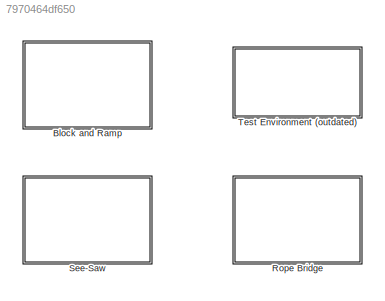
MODEL slx_7970464df650
KIND library
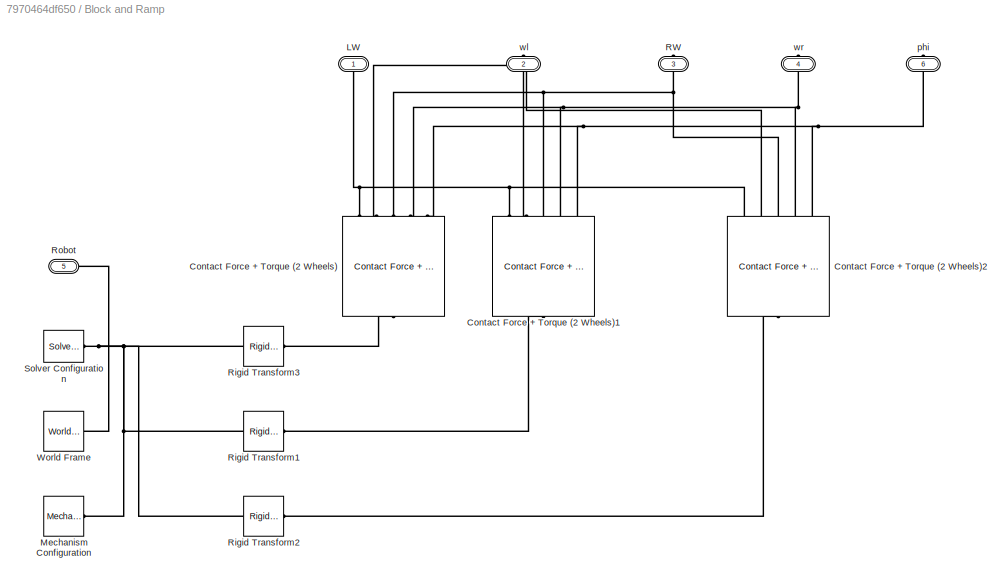
BLOCK [SubSystem] Block and Ramp
  Ports = [0, 0, 0, 0, 0, 1, 5]
  RequestExecContextInheritance = off
BLOCK [Reference] Block and Ramp/Contact Force + Torque (2 Wheels)  REF=contactlibV2/Contact Force + Torque
(2 Wheels)
  Ports = [0, 0, 0, 0, 0, 1, 5]
  SourceBlock = contactlibV2/Contact Force + Torque\n(2 Wheels)
  b = b
  b2 = b2
  blockColor = [0.2 0.2 1]
  k = k
  mBlock = 5
  rWheel = wheel.r
  xBlock = 3
  yBlock = 3
  zBlock = 0.01
BLOCK [Reference] Block and Ramp/Contact Force + Torque (2 Wheels)1  REF=contactlibV2/Contact Force + Torque
(2 Wheels)
  Ports = [0, 0, 0, 0, 0, 1, 5]
  SourceBlock = contactlibV2/Contact Force + Torque\n(2 Wheels)
  b = b
  b2 = b2
  blockColor = [0.2 0.6 0.2]
  k = k
  mBlock = 5
  rWheel = wheel.r
  xBlock = 1
  yBlock = 3
  zBlock = 0.025
BLOCK [Reference] Block and Ramp/Contact Force + Torque (2 Wheels)2  REF=contactlibV2/Contact Force + Torque
(2 Wheels)
  Ports = [0, 0, 0, 0, 0, 1, 5]
  SourceBlock = contactlibV2/Contact Force + Torque\n(2 Wheels)
  b = b
  b2 = b2
  blockColor = [0.6 0.2 0.2]
  k = k
  mBlock = 5
  rWheel = wheel.r
  xBlock = 1
  yBlock = 3
  zBlock = 0.025
BLOCK [PMIOPort] Block and Ramp/LW
  Port = 1
  Side = Right
BLOCK [Reference] Block and Ramp/Mechanism Configuration  REF=sm_lib/Utilities/Mechanism
Configuration
  BlockFunction = simmechanics.library.utilities.mechanism_configuration
  ClassName = MechanismConfiguration
  GravityUnits = m/s^2
  GravityVector = [0 0 -9.80665]
  LinearizationDelta = 0.001
  LogSimulationData = off
  Ports = [0, 0, 0, 0, 0, 0, 1]
  SourceBlock = sm_lib/Utilities/Mechanism\nConfiguration
  SourceType = Mechanism\nConfiguration
  UniformGravity = Constant
BLOCK [PMIOPort] Block and Ramp/RW
  Port = 3
  Side = Right
BLOCK [Reference] Block and Ramp/Rigid Transform1  REF=sm_lib/Frames and
Transforms/Rigid
Transform
  BaseAlignAxisA = +Y
  BaseAlignAxisB = +Z
  BlockFunction = simmechanics.library.frames_transforms.rigid_transform
  ClassName = RigidTransform
  FollAlignAxisA = +X
  FollAlignAxisB = +Y
  LogSimulationData = off
  Ports = [0, 0, 0, 0, 0, 1, 1]
  RotationAngle = 0
  RotationAngleUnits = deg
  RotationArbitraryAxis = [0 0 1]
  RotationMatrix = [1 0 0; 0 1 0; 0 0 1]
  RotationMethod = StandardAxis
  RotationStandardAxis = +Z
  SourceBlock = sm_lib/Frames and\nTransforms/Rigid\nTransform
  SourceType = Rigid\nTransform
  TranslationCartesianOffset = [1 0 0.0825-0.12]
  TranslationLengthUnit = m
  TranslationMethod = Cartesian
  TranslationROffset = 0
  TranslationROffsetUnits = m
  TranslationStandardAxis = +Z
  TranslationStandardOffset = 0
  TranslationThetaOffset = 0
  TranslationThetaOffsetUnits = deg
  TranslationZOffset = 0
  TranslationZOffsetUnits = m
BLOCK [Reference] Block and Ramp/Rigid Transform2  REF=sm_lib/Frames and
Transforms/Rigid
Transform
  BaseAlignAxisA = +Y
  BaseAlignAxisB = +Z
  BlockFunction = simmechanics.library.frames_transforms.rigid_transform
  ClassName = RigidTransform
  FollAlignAxisA = +X
  FollAlignAxisB = +Y
  LogSimulationData = off
  Ports = [0, 0, 0, 0, 0, 1, 1]
  RotationAngle = 15
  RotationAngleUnits = deg
  RotationArbitraryAxis = [0 0 1]
  RotationMatrix = [1 0 0; 0 1 0; 0 0 1]
  RotationMethod = StandardAxis
  RotationStandardAxis = +Y
  SourceBlock = sm_lib/Frames and\nTransforms/Rigid\nTransform
  SourceType = Rigid\nTransform
  TranslationCartesianOffset = [-1 0 0.084]
  TranslationLengthUnit = m
  TranslationMethod = Cartesian
  TranslationROffset = 0
  TranslationROffsetUnits = m
  TranslationStandardAxis = +Z
  TranslationStandardOffset = 0
  TranslationThetaOffset = 0
  TranslationThetaOffsetUnits = deg
  TranslationZOffset = 0
  TranslationZOffsetUnits = m
BLOCK [Reference] Block and Ramp/Rigid Transform3  REF=sm_lib/Frames and
Transforms/Rigid
Transform
  BaseAlignAxisA = +Y
  BaseAlignAxisB = +Z
  BlockFunction = simmechanics.library.frames_transforms.rigid_transform
  ClassName = RigidTransform
  FollAlignAxisA = +X
  FollAlignAxisB = +Y
  LogSimulationData = off
  Ports = [0, 0, 0, 0, 0, 1, 1]
  RotationAngle = 0
  RotationAngleUnits = deg
  RotationArbitraryAxis = [0 0 1]
  RotationMatrix = [1 0 0; 0 1 0; 0 0 1]
  RotationMethod = StandardAxis
  RotationStandardAxis = +Z
  SourceBlock = sm_lib/Frames and\nTransforms/Rigid\nTransform
  SourceType = Rigid\nTransform
  TranslationCartesianOffset = [0 0 -(wheel.r+0.01)]
  TranslationLengthUnit = m
  TranslationMethod = Cartesian
  TranslationROffset = 0
  TranslationROffsetUnits = m
  TranslationStandardAxis = +Z
  TranslationStandardOffset = 0
  TranslationThetaOffset = 0
  TranslationThetaOffsetUnits = deg
  TranslationZOffset = 0
  TranslationZOffsetUnits = m
BLOCK [PMIOPort] Block and Ramp/Robot
  Port = 5
  Side = Left
BLOCK [Reference] Block and Ramp/Solver Configuration  REF=nesl_utility/Solver
Configuration
  AbsTol = 1e-06
  Accelerate = off
  AutomaticFiltering = on
  DelaysMemoryBudget = 1024
  DoDC = off
  DoFixedCost = off
  EnableSwitchedLinearOptims = on
  FilteringTimeConstant = 0.001
  FrequencyDomain = off
  Harmonics = []
  LeftPortType = input
  LinearAlgebra = Sparse
  LocalSolverChoice = NE_BACKWARD_EULER_ADVANCER
  LocalSolverSampleTime = 0.001
  MaxModeIter = 2
  MaxNonlinIter = 3
  MinStep = 1e-09
  PhysicalDomain = network_engine_domain
  Ports = [0, 0, 0, 0, 0, 0, 1]
  Profile = off
  RelTol = 0.001
  ResidualTolerance = 1e-09
  RightPortType = generic
  SimulateNoise = off
  SourceBlock = nesl_utility/Solver\nConfiguration
  SourceType = Solver\nConfiguration
  SubClassName = solver
  ToWorkspace = off
  Tones = []
  UseCCode = off
  UseLocalSampling = off
  UseLocalSolver = off
BLOCK [Reference] Block and Ramp/World Frame  REF=sm_lib/Frames and
Transforms/World Frame
  BlockFunction = simmechanics.library.frames_transforms.world_frame
  ClassName = WorldFrame
  LogSimulationData = off
  Ports = [0, 0, 0, 0, 0, 0, 1]
  SourceBlock = sm_lib/Frames and\nTransforms/World Frame
  SourceType = World Frame
BLOCK [PMIOPort] Block and Ramp/phi
  Port = 6
  Side = Right
BLOCK [PMIOPort] Block and Ramp/wl
  Port = 2
  Side = Right
BLOCK [PMIOPort] Block and Ramp/wr
  Port = 4
  Side = Right
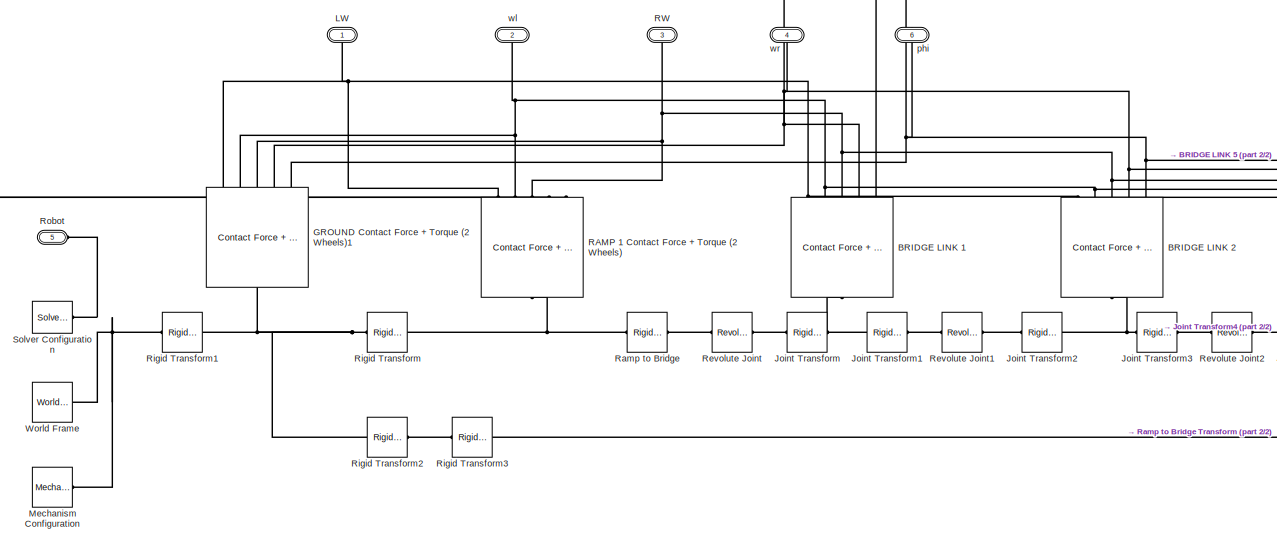
[diagram: Rope Bridge - part 1/2, left side, full height]
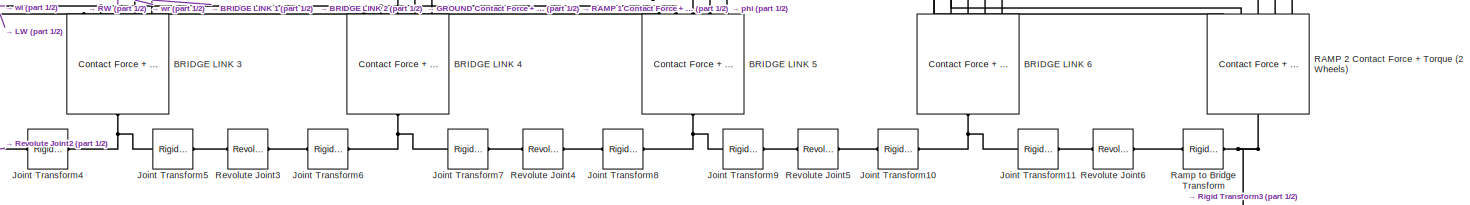
[diagram: Rope Bridge - part 2/2, middle right region]
BLOCK [SubSystem] Rope Bridge
  Ports = [0, 0, 0, 0, 0, 1, 5]
  RequestExecContextInheritance = off
  VariantControl = Variant2
BLOCK [Reference] Rope Bridge/ BRIDGE LINK 1  REF=contactlibV2/Contact Force + Torque
(2 Wheels, Moving Block)
  Ports = [0, 0, 0, 0, 0, 1, 5]
  SourceBlock = contactlibV2/Contact Force + Torque\n(2 Wheels, Moving Block)
  b = b
  b2 = b2
  blockColor = [1 0 0]
  k = k
  mBlock = 0.2
  rWheel = wheel.r
  xBlock = 2.5*(0.0254)
  yBlock = 12*(0.0254)
  zBlock = 0.75*(0.0254)
BLOCK [Reference] Rope Bridge/ BRIDGE LINK 2  REF=contactlibV2/Contact Force + Torque
(2 Wheels, Moving Block)
  Ports = [0, 0, 0, 0, 0, 1, 5]
  SourceBlock = contactlibV2/Contact Force + Torque\n(2 Wheels, Moving Block)
  b = b
  b2 = b2
  blockColor = [0 1 0]
  k = k
  mBlock = 0.2
  rWheel = wheel.r
  xBlock = 2.5*(0.0254)
  yBlock = 12*(0.0254)
  zBlock = 0.75*(0.0254)
BLOCK [Reference] Rope Bridge/ BRIDGE LINK 3  REF=contactlibV2/Contact Force + Torque
(2 Wheels, Moving Block)
  Ports = [0, 0, 0, 0, 0, 1, 5]
  SourceBlock = contactlibV2/Contact Force + Torque\n(2 Wheels, Moving Block)
  b = b
  b2 = b2
  blockColor = [1 0 0]
  k = k
  mBlock = 0.2
  rWheel = wheel.r
  xBlock = 2.5*(0.0254)
  yBlock = 12*(0.0254)
  zBlock = 0.75*(0.0254)
BLOCK [Reference] Rope Bridge/ BRIDGE LINK 4  REF=contactlibV2/Contact Force + Torque
(2 Wheels, Moving Block)
  Ports = [0, 0, 0, 0, 0, 1, 5]
  SourceBlock = contactlibV2/Contact Force + Torque\n(2 Wheels, Moving Block)
  b = b
  b2 = b2
  blockColor = [0 1 0]
  k = k
  mBlock = 0.2
  rWheel = wheel.r
  xBlock = 2.5*(0.0254)
  yBlock = 12*(0.0254)
  zBlock = 0.75*(0.0254)
BLOCK [Reference] Rope Bridge/ BRIDGE LINK 5  REF=contactlibV2/Contact Force + Torque
(2 Wheels, Moving Block)
  Ports = [0, 0, 0, 0, 0, 1, 5]
  SourceBlock = contactlibV2/Contact Force + Torque\n(2 Wheels, Moving Block)
  b = b
  b2 = b2
  blockColor = [1 0 0]
  k = k
  mBlock = 0.2
  rWheel = wheel.r
  xBlock = 2.5*(0.0254)
  yBlock = 12*(0.0254)
  zBlock = 0.75*(0.0254)
BLOCK [Reference] Rope Bridge/ BRIDGE LINK 6  REF=contactlibV2/Contact Force + Torque
(2 Wheels, Moving Block)
  Ports = [0, 0, 0, 0, 0, 1, 5]
  SourceBlock = contactlibV2/Contact Force + Torque\n(2 Wheels, Moving Block)
  b = b
  b2 = b2
  blockColor = [0 1 0]
  k = k
  mBlock = 0.2
  rWheel = wheel.r
  xBlock = 2.5*(0.0254)
  yBlock = 12*(0.0254)
  zBlock = 0.75*(0.0254)
BLOCK [Reference] Rope Bridge/GROUND Contact Force + Torque (2 Wheels)1  REF=contactlibV2/Contact Force + Torque
(2 Wheels)
  Ports = [0, 0, 0, 0, 0, 1, 5]
  SourceBlock = contactlibV2/Contact Force + Torque\n(2 Wheels)
  b = b
  b2 = b2
  blockColor = [0.2 0.2 0.6]
  k = k
  mBlock = 5
  rWheel = wheel.r
  xBlock = 24*(0.0254)
  yBlock = 12*(0.0254)
  zBlock = 0.5*(0.0254)
BLOCK [Reference] Rope Bridge/Joint Transform  REF=sm_lib/Frames and
Transforms/Rigid
Transform
  BaseAlignAxisA = +Y
  BaseAlignAxisB = +Z
  BlockFunction = simmechanics.library.frames_transforms.rigid_transform
  ClassName = RigidTransform
  FollAlignAxisA = +X
  FollAlignAxisB = +Y
  LogSimulationData = off
  Ports = [0, 0, 0, 0, 0, 1, 1]
  RotationAngle = 90
  RotationAngleUnits = deg
  RotationArbitraryAxis = [0 0 1]
  RotationMatrix = [1 0 0; 0 1 0; 0 0 1]
  RotationMethod = StandardAxis
  RotationStandardAxis = -X
  SourceBlock = sm_lib/Frames and\nTransforms/Rigid\nTransform
  SourceType = Rigid\nTransform
  TranslationCartesianOffset = [1.25 0 -0.2]
  TranslationLengthUnit = in
  TranslationMethod = StandardAxis
  TranslationROffset = 0
  TranslationROffsetUnits = m
  TranslationStandardAxis = +X
  TranslationStandardOffset = 1.25
  TranslationThetaOffset = 0
  TranslationThetaOffsetUnits = deg
  TranslationZOffset = 0
  TranslationZOffsetUnits = m
BLOCK [Reference] Rope Bridge/Joint Transform1  REF=sm_lib/Frames and
Transforms/Rigid
Transform
  BaseAlignAxisA = +Y
  BaseAlignAxisB = +Z
  BlockFunction = simmechanics.library.frames_transforms.rigid_transform
  ClassName = RigidTransform
  FollAlignAxisA = +X
  FollAlignAxisB = +Y
  LogSimulationData = off
  Ports = [0, 0, 0, 0, 0, 1, 1]
  RotationAngle = 90
  RotationAngleUnits = deg
  RotationArbitraryAxis = [0 0 1]
  RotationMatrix = [1 0 0; 0 1 0; 0 0 1]
  RotationMethod = StandardAxis
  RotationStandardAxis = +X
  SourceBlock = sm_lib/Frames and\nTransforms/Rigid\nTransform
  SourceType = Rigid\nTransform
  TranslationCartesianOffset = [(11*cos(asin(4.75/22))) 0 4.75/2]
  TranslationLengthUnit = in
  TranslationMethod = StandardAxis
  TranslationROffset = 0
  TranslationROffsetUnits = m
  TranslationStandardAxis = +X
  TranslationStandardOffset = 1.25
  TranslationThetaOffset = 0
  TranslationThetaOffsetUnits = deg
  TranslationZOffset = 0
  TranslationZOffsetUnits = m
BLOCK [Reference] Rope Bridge/Joint Transform10  REF=sm_lib/Frames and
Transforms/Rigid
Transform
  BaseAlignAxisA = +Y
  BaseAlignAxisB = +Z
  BlockFunction = simmechanics.library.frames_transforms.rigid_transform
  ClassName = RigidTransform
  FollAlignAxisA = +X
  FollAlignAxisB = +Y
  LogSimulationData = off
  Ports = [0, 0, 0, 0, 0, 1, 1]
  RotationAngle = 90
  RotationAngleUnits = deg
  RotationArbitraryAxis = [0 0 1]
  RotationMatrix = [1 0 0; 0 1 0; 0 0 1]
  RotationMethod = StandardAxis
  RotationStandardAxis = -X
  SourceBlock = sm_lib/Frames and\nTransforms/Rigid\nTransform
  SourceType = Rigid\nTransform
  TranslationCartesianOffset = [(11*cos(asin(4.75/22))) 0 4.75/2]
  TranslationLengthUnit = in
  TranslationMethod = StandardAxis
  TranslationROffset = 0
  TranslationROffsetUnits = m
  TranslationStandardAxis = +X
  TranslationStandardOffset = 1.25
  TranslationThetaOffset = 0
  TranslationThetaOffsetUnits = deg
  TranslationZOffset = 0
  TranslationZOffsetUnits = m
BLOCK [Reference] Rope Bridge/Joint Transform11  REF=sm_lib/Frames and
Transforms/Rigid
Transform
  BaseAlignAxisA = +Y
  BaseAlignAxisB = +Z
  BlockFunction = simmechanics.library.frames_transforms.rigid_transform
  ClassName = RigidTransform
  FollAlignAxisA = +X
  FollAlignAxisB = +Y
  LogSimulationData = off
  Ports = [0, 0, 0, 0, 0, 1, 1]
  RotationAngle = 90
  RotationAngleUnits = deg
  RotationArbitraryAxis = [0 0 1]
  RotationMatrix = [1 0 0; 0 1 0; 0 0 1]
  RotationMethod = StandardAxis
  RotationStandardAxis = +X
  SourceBlock = sm_lib/Frames and\nTransforms/Rigid\nTransform
  SourceType = Rigid\nTransform
  TranslationCartesianOffset = [1.25 0 0]
  TranslationLengthUnit = in
  TranslationMethod = Cartesian
  TranslationROffset = 0
  TranslationROffsetUnits = m
  TranslationStandardAxis = +X
  TranslationStandardOffset = 1.25
  TranslationThetaOffset = 0
  TranslationThetaOffsetUnits = deg
  TranslationZOffset = 0
  TranslationZOffsetUnits = m
BLOCK [Reference] Rope Bridge/Joint Transform2  REF=sm_lib/Frames and
Transforms/Rigid
Transform
  BaseAlignAxisA = +Y
  BaseAlignAxisB = +Z
  BlockFunction = simmechanics.library.frames_transforms.rigid_transform
  ClassName = RigidTransform
  FollAlignAxisA = +X
  FollAlignAxisB = +Y
  LogSimulationData = off
  Ports = [0, 0, 0, 0, 0, 1, 1]
  RotationAngle = 90
  RotationAngleUnits = deg
  RotationArbitraryAxis = [0 0 1]
  RotationMatrix = [1 0 0; 0 1 0; 0 0 1]
  RotationMethod = StandardAxis
  RotationStandardAxis = -X
  SourceBlock = sm_lib/Frames and\nTransforms/Rigid\nTransform
  SourceType = Rigid\nTransform
  TranslationCartesianOffset = [(11*cos(asin(4.75/22))) 0 4.75/2]
  TranslationLengthUnit = in
  TranslationMethod = StandardAxis
  TranslationROffset = 0
  TranslationROffsetUnits = m
  TranslationStandardAxis = +X
  TranslationStandardOffset = 1.25
  TranslationThetaOffset = 0
  TranslationThetaOffsetUnits = deg
  TranslationZOffset = 0
  TranslationZOffsetUnits = m
BLOCK [Reference] Rope Bridge/Joint Transform3  REF=sm_lib/Frames and
Transforms/Rigid
Transform
  BaseAlignAxisA = +Y
  BaseAlignAxisB = +Z
  BlockFunction = simmechanics.library.frames_transforms.rigid_transform
  ClassName = RigidTransform
  FollAlignAxisA = +X
  FollAlignAxisB = +Y
  LogSimulationData = off
  Ports = [0, 0, 0, 0, 0, 1, 1]
  RotationAngle = 90
  RotationAngleUnits = deg
  RotationArbitraryAxis = [0 0 1]
  RotationMatrix = [1 0 0; 0 1 0; 0 0 1]
  RotationMethod = StandardAxis
  RotationStandardAxis = +X
  SourceBlock = sm_lib/Frames and\nTransforms/Rigid\nTransform
  SourceType = Rigid\nTransform
  TranslationCartesianOffset = [(11*cos(asin(4.75/22))) 0 4.75/2]
  TranslationLengthUnit = in
  TranslationMethod = StandardAxis
  TranslationROffset = 0
  TranslationROffsetUnits = m
  TranslationStandardAxis = +X
  TranslationStandardOffset = 1.25
  TranslationThetaOffset = 0
  TranslationThetaOffsetUnits = deg
  TranslationZOffset = 0
  TranslationZOffsetUnits = m
BLOCK [Reference] Rope Bridge/Joint Transform4  REF=sm_lib/Frames and
Transforms/Rigid
Transform
  BaseAlignAxisA = +Y
  BaseAlignAxisB = +Z
  BlockFunction = simmechanics.library.frames_transforms.rigid_transform
  ClassName = RigidTransform
  FollAlignAxisA = +X
  FollAlignAxisB = +Y
  LogSimulationData = off
  Ports = [0, 0, 0, 0, 0, 1, 1]
  RotationAngle = 90
  RotationAngleUnits = deg
  RotationArbitraryAxis = [0 0 1]
  RotationMatrix = [1 0 0; 0 1 0; 0 0 1]
  RotationMethod = StandardAxis
  RotationStandardAxis = -X
  SourceBlock = sm_lib/Frames and\nTransforms/Rigid\nTransform
  SourceType = Rigid\nTransform
  TranslationCartesianOffset = [(11*cos(asin(4.75/22))) 0 4.75/2]
  TranslationLengthUnit = in
  TranslationMethod = StandardAxis
  TranslationROffset = 0
  TranslationROffsetUnits = m
  TranslationStandardAxis = +X
  TranslationStandardOffset = 1.25
  TranslationThetaOffset = 0
  TranslationThetaOffsetUnits = deg
  TranslationZOffset = 0
  TranslationZOffsetUnits = m
BLOCK [Reference] Rope Bridge/Joint Transform5  REF=sm_lib/Frames and
Transforms/Rigid
Transform
  BaseAlignAxisA = +Y
  BaseAlignAxisB = +Z
  BlockFunction = simmechanics.library.frames_transforms.rigid_transform
  ClassName = RigidTransform
  FollAlignAxisA = +X
  FollAlignAxisB = +Y
  LogSimulationData = off
  Ports = [0, 0, 0, 0, 0, 1, 1]
  RotationAngle = 90
  RotationAngleUnits = deg
  RotationArbitraryAxis = [0 0 1]
  RotationMatrix = [1 0 0; 0 1 0; 0 0 1]
  RotationMethod = StandardAxis
  RotationStandardAxis = +X
  SourceBlock = sm_lib/Frames and\nTransforms/Rigid\nTransform
  SourceType = Rigid\nTransform
  TranslationCartesianOffset = [(11*cos(asin(4.75/22))) 0 4.75/2]
  TranslationLengthUnit = in
  TranslationMethod = StandardAxis
  TranslationROffset = 0
  TranslationROffsetUnits = m
  TranslationStandardAxis = +X
  TranslationStandardOffset = 1.25
  TranslationThetaOffset = 0
  TranslationThetaOffsetUnits = deg
  TranslationZOffset = 0
  TranslationZOffsetUnits = m
BLOCK [Reference] Rope Bridge/Joint Transform6  REF=sm_lib/Frames and
Transforms/Rigid
Transform
  BaseAlignAxisA = +Y
  BaseAlignAxisB = +Z
  BlockFunction = simmechanics.library.frames_transforms.rigid_transform
  ClassName = RigidTransform
  FollAlignAxisA = +X
  FollAlignAxisB = +Y
  LogSimulationData = off
  Ports = [0, 0, 0, 0, 0, 1, 1]
  RotationAngle = 90
  RotationAngleUnits = deg
  RotationArbitraryAxis = [0 0 1]
  RotationMatrix = [1 0 0; 0 1 0; 0 0 1]
  RotationMethod = StandardAxis
  RotationStandardAxis = -X
  SourceBlock = sm_lib/Frames and\nTransforms/Rigid\nTransform
  SourceType = Rigid\nTransform
  TranslationCartesianOffset = [(11*cos(asin(4.75/22))) 0 4.75/2]
  TranslationLengthUnit = in
  TranslationMethod = StandardAxis
  TranslationROffset = 0
  TranslationROffsetUnits = m
  TranslationStandardAxis = +X
  TranslationStandardOffset = 1.25
  TranslationThetaOffset = 0
  TranslationThetaOffsetUnits = deg
  TranslationZOffset = 0
  TranslationZOffsetUnits = m
BLOCK [Reference] Rope Bridge/Joint Transform7  REF=sm_lib/Frames and
Transforms/Rigid
Transform
  BaseAlignAxisA = +Y
  BaseAlignAxisB = +Z
  BlockFunction = simmechanics.library.frames_transforms.rigid_transform
  ClassName = RigidTransform
  FollAlignAxisA = +X
  FollAlignAxisB = +Y
  LogSimulationData = off
  Ports = [0, 0, 0, 0, 0, 1, 1]
  RotationAngle = 90
  RotationAngleUnits = deg
  RotationArbitraryAxis = [0 0 1]
  RotationMatrix = [1 0 0; 0 1 0; 0 0 1]
  RotationMethod = StandardAxis
  RotationStandardAxis = +X
  SourceBlock = sm_lib/Frames and\nTransforms/Rigid\nTransform
  SourceType = Rigid\nTransform
  TranslationCartesianOffset = [(11*cos(asin(4.75/22))) 0 4.75/2]
  TranslationLengthUnit = in
  TranslationMethod = StandardAxis
  TranslationROffset = 0
  TranslationROffsetUnits = m
  TranslationStandardAxis = +X
  TranslationStandardOffset = 1.25
  TranslationThetaOffset = 0
  TranslationThetaOffsetUnits = deg
  TranslationZOffset = 0
  TranslationZOffsetUnits = m
BLOCK [Reference] Rope Bridge/Joint Transform8  REF=sm_lib/Frames and
Transforms/Rigid
Transform
  BaseAlignAxisA = +Y
  BaseAlignAxisB = +Z
  BlockFunction = simmechanics.library.frames_transforms.rigid_transform
  ClassName = RigidTransform
  FollAlignAxisA = +X
  FollAlignAxisB = +Y
  LogSimulationData = off
  Ports = [0, 0, 0, 0, 0, 1, 1]
  RotationAngle = 90
  RotationAngleUnits = deg
  RotationArbitraryAxis = [0 0 1]
  RotationMatrix = [1 0 0; 0 1 0; 0 0 1]
  RotationMethod = StandardAxis
  RotationStandardAxis = -X
  SourceBlock = sm_lib/Frames and\nTransforms/Rigid\nTransform
  SourceType = Rigid\nTransform
  TranslationCartesianOffset = [(11*cos(asin(4.75/22))) 0 4.75/2]
  TranslationLengthUnit = in
  TranslationMethod = StandardAxis
  TranslationROffset = 0
  TranslationROffsetUnits = m
  TranslationStandardAxis = +X
  TranslationStandardOffset = 1.25
  TranslationThetaOffset = 0
  TranslationThetaOffsetUnits = deg
  TranslationZOffset = 0
  TranslationZOffsetUnits = m
BLOCK [Reference] Rope Bridge/Joint Transform9  REF=sm_lib/Frames and
Transforms/Rigid
Transform
  BaseAlignAxisA = +Y
  BaseAlignAxisB = +Z
  BlockFunction = simmechanics.library.frames_transforms.rigid_transform
  ClassName = RigidTransform
  FollAlignAxisA = +X
  FollAlignAxisB = +Y
  LogSimulationData = off
  Ports = [0, 0, 0, 0, 0, 1, 1]
  RotationAngle = 90
  RotationAngleUnits = deg
  RotationArbitraryAxis = [0 0 1]
  RotationMatrix = [1 0 0; 0 1 0; 0 0 1]
  RotationMethod = StandardAxis
  RotationStandardAxis = +X
  SourceBlock = sm_lib/Frames and\nTransforms/Rigid\nTransform
  SourceType = Rigid\nTransform
  TranslationCartesianOffset = [(11*cos(asin(4.75/22))) 0 4.75/2]
  TranslationLengthUnit = in
  TranslationMethod = StandardAxis
  TranslationROffset = 0
  TranslationROffsetUnits = m
  TranslationStandardAxis = +X
  TranslationStandardOffset = 1.25
  TranslationThetaOffset = 0
  TranslationThetaOffsetUnits = deg
  TranslationZOffset = 0
  TranslationZOffsetUnits = m
BLOCK [PMIOPort] Rope Bridge/LW
  Port = 1
  Side = Right
BLOCK [Reference] Rope Bridge/Mechanism Configuration  REF=sm_lib/Utilities/Mechanism
Configuration
  BlockFunction = simmechanics.library.utilities.mechanism_configuration
  ClassName = MechanismConfiguration
  GravityUnits = m/s^2
  GravityVector = [0 0 -9.80665]
  LinearizationDelta = 0.001
  LogSimulationData = off
  Ports = [0, 0, 0, 0, 0, 0, 1]
  SourceBlock = sm_lib/Utilities/Mechanism\nConfiguration
  SourceType = Mechanism\nConfiguration
  UniformGravity = Constant
BLOCK [Reference] Rope Bridge/RAMP 1 Contact Force + Torque (2 Wheels)  REF=contactlibV2/Contact Force + Torque
(2 Wheels)
  Ports = [0, 0, 0, 0, 0, 1, 5]
  SourceBlock = contactlibV2/Contact Force + Torque\n(2 Wheels)
  b = b
  b2 = b2
  blockColor = [0.2 0.2 1]
  k = k
  mBlock = 5
  rWheel = wheel.r
  xBlock = 22*(0.0254)
  yBlock = 12*(0.0254)
  zBlock = 0.5*(0.0254)
BLOCK [Reference] Rope Bridge/RAMP 2 Contact Force + Torque (2 Wheels)  REF=contactlibV2/Contact Force + Torque
(2 Wheels)
  Ports = [0, 0, 0, 0, 0, 1, 5]
  SourceBlock = contactlibV2/Contact Force + Torque\n(2 Wheels)
  b = b
  b2 = b2
  blockColor = [0.2 0.2 0.6]
  k = k
  mBlock = 5
  rWheel = wheel.r
  xBlock = 24*(0.0254)
  yBlock = 12*(0.0254)
  zBlock = 0.5*(0.0254)
BLOCK [PMIOPort] Rope Bridge/RW
  Port = 3
  Side = Right
BLOCK [Reference] Rope Bridge/Ramp to Bridge  REF=sm_lib/Frames and
Transforms/Rigid
Transform
  BaseAlignAxisA = +Y
  BaseAlignAxisB = +Z
  BlockFunction = simmechanics.library.frames_transforms.rigid_transform
  ClassName = RigidTransform
  FollAlignAxisA = +X
  FollAlignAxisB = +Y
  LogSimulationData = off
  Ports = [0, 0, 0, 0, 0, 1, 1]
  RotationAngle = 90
  RotationAngleUnits = deg
  RotationArbitraryAxis = [0 0 1]
  RotationMatrix = [1 0 0; 0 1 0; 0 0 1]
  RotationMethod = StandardAxis
  RotationStandardAxis = +X
  SourceBlock = sm_lib/Frames and\nTransforms/Rigid\nTransform
  SourceType = Rigid\nTransform
  TranslationCartesianOffset = [11 0 -0.1]
  TranslationLengthUnit = in
  TranslationMethod = Cartesian
  TranslationROffset = 0
  TranslationROffsetUnits = m
  TranslationStandardAxis = +X
  TranslationStandardOffset = 11
  TranslationThetaOffset = 0
  TranslationThetaOffsetUnits = deg
  TranslationZOffset = 0
  TranslationZOffsetUnits = m
BLOCK [Reference] Rope Bridge/Ramp to Bridge Transform  REF=sm_lib/Frames and
Transforms/Rigid
Transform
  BaseAlignAxisA = +Y
  BaseAlignAxisB = +Z
  BlockFunction = simmechanics.library.frames_transforms.rigid_transform
  ClassName = RigidTransform
  FollAlignAxisA = +X
  FollAlignAxisB = +Y
  LogSimulationData = off
  Ports = [0, 0, 0, 0, 0, 1, 1]
  RotationAngle = 90
  RotationAngleUnits = deg
  RotationArbitraryAxis = [0 0 1]
  RotationMatrix = [1 0 0; 0 1 0; 0 0 1]
  RotationMethod = StandardAxis
  RotationStandardAxis = +X
  SourceBlock = sm_lib/Frames and\nTransforms/Rigid\nTransform
  SourceType = Rigid\nTransform
  TranslationCartesianOffset = [-12 0 -0.1]
  TranslationLengthUnit = in
  TranslationMethod = Cartesian
  TranslationROffset = 0
  TranslationROffsetUnits = m
  TranslationStandardAxis = -X
  TranslationStandardOffset = 12
  TranslationThetaOffset = 0
  TranslationThetaOffsetUnits = deg
  TranslationZOffset = 0
  TranslationZOffsetUnits = m
BLOCK [Reference] Rope Bridge/Revolute Joint  REF=sm_lib/Joints/Revolute Joint
  BlockFunction = simmechanics.library.joints.revolute_joint
  ClassName = RevoluteJoint
  CompositeWrenchDir = FollowerOnBase
  CompositeWrenchFrame = BaseFrame
  DampingCoefficient = dbridge
  DampingCoefficientUnits = N*m/(rad/s)
  EquilibriumPosition = 0
  EquilibriumPositionUnits = deg
  LogSimulationData = off
  MotionActuationMode = ComputedMotion
  Ports = [0, 0, 0, 0, 0, 1, 1]
  PositionTargetPriority = High
  PositionTargetSpecify = off
  PositionTargetValue = 0
  PositionTargetValueUnits = deg
  SenseAcceleration = off
  SenseConstraintForce = off
  SenseConstraintForceX = off
  SenseConstraintForceY = off
  SenseConstraintForceZ = off
  SenseConstraintTorque = off
  SenseConstraintTorqueX = off
  SenseConstraintTorqueY = off
  SenseConstraintTorqueZ = off
  SensePosition = off
  SenseTorqueForce = off
  SenseTotalForce = off
  SenseTotalForceX = off
  SenseTotalForceY = off
  SenseTotalForceZ = off
  SenseTotalTorque = off
  SenseTotalTorqueX = off
  SenseTotalTorqueY = off
  SenseTotalTorqueZ = off
  SenseVelocity = off
  SourceBlock = sm_lib/Joints/Revolute Joint
  SourceType = Revolute Joint
  SpringStiffness = kbridge
  SpringStiffnessUnits = N*m/rad
  TorqueActuationMode = NoTorque
  VelocityTargetPriority = High
  VelocityTargetSpecify = off
  VelocityTargetValue = 0
  VelocityTargetValueUnits = deg/s
BLOCK [Reference] Rope Bridge/Revolute Joint1  REF=sm_lib/Joints/Revolute Joint
  BlockFunction = simmechanics.library.joints.revolute_joint
  ClassName = RevoluteJoint
  CompositeWrenchDir = FollowerOnBase
  CompositeWrenchFrame = BaseFrame
  DampingCoefficient = dbridge
  DampingCoefficientUnits = N*m/(rad/s)
  EquilibriumPosition = 0
  EquilibriumPositionUnits = deg
  LogSimulationData = off
  MotionActuationMode = ComputedMotion
  Ports = [0, 0, 0, 0, 0, 1, 1]
  PositionTargetPriority = High
  PositionTargetSpecify = off
  PositionTargetValue = 0
  PositionTargetValueUnits = deg
  SenseAcceleration = off
  SenseConstraintForce = off
  SenseConstraintForceX = off
  SenseConstraintForceY = off
  SenseConstraintForceZ = off
  SenseConstraintTorque = off
  SenseConstraintTorqueX = off
  SenseConstraintTorqueY = off
  SenseConstraintTorqueZ = off
  SensePosition = off
  SenseTorqueForce = off
  SenseTotalForce = off
  SenseTotalForceX = off
  SenseTotalForceY = off
  SenseTotalForceZ = off
  SenseTotalTorque = off
  SenseTotalTorqueX = off
  SenseTotalTorqueY = off
  SenseTotalTorqueZ = off
  SenseVelocity = off
  SourceBlock = sm_lib/Joints/Revolute Joint
  SourceType = Revolute Joint
  SpringStiffness = kbridge
  SpringStiffnessUnits = N*m/rad
  TorqueActuationMode = NoTorque
  VelocityTargetPriority = High
  VelocityTargetSpecify = off
  VelocityTargetValue = 0
  VelocityTargetValueUnits = deg/s
BLOCK [Reference] Rope Bridge/Revolute Joint2  REF=sm_lib/Joints/Revolute Joint
  BlockFunction = simmechanics.library.joints.revolute_joint
  ClassName = RevoluteJoint
  CompositeWrenchDir = FollowerOnBase
  CompositeWrenchFrame = BaseFrame
  DampingCoefficient = dbridge
  DampingCoefficientUnits = N*m/(rad/s)
  EquilibriumPosition = 0
  EquilibriumPositionUnits = deg
  LogSimulationData = off
  MotionActuationMode = ComputedMotion
  Ports = [0, 0, 0, 0, 0, 1, 1]
  PositionTargetPriority = High
  PositionTargetSpecify = off
  PositionTargetValue = 0
  PositionTargetValueUnits = deg
  SenseAcceleration = off
  SenseConstraintForce = off
  SenseConstraintForceX = off
  SenseConstraintForceY = off
  SenseConstraintForceZ = off
  SenseConstraintTorque = off
  SenseConstraintTorqueX = off
  SenseConstraintTorqueY = off
  SenseConstraintTorqueZ = off
  SensePosition = off
  SenseTorqueForce = off
  SenseTotalForce = off
  SenseTotalForceX = off
  SenseTotalForceY = off
  SenseTotalForceZ = off
  SenseTotalTorque = off
  SenseTotalTorqueX = off
  SenseTotalTorqueY = off
  SenseTotalTorqueZ = off
  SenseVelocity = off
  SourceBlock = sm_lib/Joints/Revolute Joint
  SourceType = Revolute Joint
  SpringStiffness = kbridge
  SpringStiffnessUnits = N*m/rad
  TorqueActuationMode = NoTorque
  VelocityTargetPriority = High
  VelocityTargetSpecify = off
  VelocityTargetValue = 0
  VelocityTargetValueUnits = deg/s
BLOCK [Reference] Rope Bridge/Revolute Joint3  REF=sm_lib/Joints/Revolute Joint
  BlockFunction = simmechanics.library.joints.revolute_joint
  ClassName = RevoluteJoint
  CompositeWrenchDir = FollowerOnBase
  CompositeWrenchFrame = BaseFrame
  DampingCoefficient = dbridge
  DampingCoefficientUnits = N*m/(rad/s)
  EquilibriumPosition = 0
  EquilibriumPositionUnits = deg
  LogSimulationData = off
  MotionActuationMode = ComputedMotion
  Ports = [0, 0, 0, 0, 0, 1, 1]
  PositionTargetPriority = High
  PositionTargetSpecify = off
  PositionTargetValue = 0
  PositionTargetValueUnits = deg
  SenseAcceleration = off
  SenseConstraintForce = off
  SenseConstraintForceX = off
  SenseConstraintForceY = off
  SenseConstraintForceZ = off
  SenseConstraintTorque = off
  SenseConstraintTorqueX = off
  SenseConstraintTorqueY = off
  SenseConstraintTorqueZ = off
  SensePosition = off
  SenseTorqueForce = off
  SenseTotalForce = off
  SenseTotalForceX = off
  SenseTotalForceY = off
  SenseTotalForceZ = off
  SenseTotalTorque = off
  SenseTotalTorqueX = off
  SenseTotalTorqueY = off
  SenseTotalTorqueZ = off
  SenseVelocity = off
  SourceBlock = sm_lib/Joints/Revolute Joint
  SourceType = Revolute Joint
  SpringStiffness = kbridge
  SpringStiffnessUnits = N*m/rad
  TorqueActuationMode = NoTorque
  VelocityTargetPriority = High
  VelocityTargetSpecify = off
  VelocityTargetValue = 0
  VelocityTargetValueUnits = deg/s
BLOCK [Reference] Rope Bridge/Revolute Joint4  REF=sm_lib/Joints/Revolute Joint
  BlockFunction = simmechanics.library.joints.revolute_joint
  ClassName = RevoluteJoint
  CompositeWrenchDir = FollowerOnBase
  CompositeWrenchFrame = BaseFrame
  DampingCoefficient = dbridge
  DampingCoefficientUnits = N*m/(rad/s)
  EquilibriumPosition = 0
  EquilibriumPositionUnits = deg
  LogSimulationData = off
  MotionActuationMode = ComputedMotion
  Ports = [0, 0, 0, 0, 0, 1, 1]
  PositionTargetPriority = High
  PositionTargetSpecify = off
  PositionTargetValue = 0
  PositionTargetValueUnits = deg
  SenseAcceleration = off
  SenseConstraintForce = off
  SenseConstraintForceX = off
  SenseConstraintForceY = off
  SenseConstraintForceZ = off
  SenseConstraintTorque = off
  SenseConstraintTorqueX = off
  SenseConstraintTorqueY = off
  SenseConstraintTorqueZ = off
  SensePosition = off
  SenseTorqueForce = off
  SenseTotalForce = off
  SenseTotalForceX = off
  SenseTotalForceY = off
  SenseTotalForceZ = off
  SenseTotalTorque = off
  SenseTotalTorqueX = off
  SenseTotalTorqueY = off
  SenseTotalTorqueZ = off
  SenseVelocity = off
  SourceBlock = sm_lib/Joints/Revolute Joint
  SourceType = Revolute Joint
  SpringStiffness = kbridge
  SpringStiffnessUnits = N*m/rad
  TorqueActuationMode = NoTorque
  VelocityTargetPriority = High
  VelocityTargetSpecify = off
  VelocityTargetValue = 0
  VelocityTargetValueUnits = deg/s
BLOCK [Reference] Rope Bridge/Revolute Joint5  REF=sm_lib/Joints/Revolute Joint
  BlockFunction = simmechanics.library.joints.revolute_joint
  ClassName = RevoluteJoint
  CompositeWrenchDir = FollowerOnBase
  CompositeWrenchFrame = BaseFrame
  DampingCoefficient = dbridge
  DampingCoefficientUnits = N*m/(rad/s)
  EquilibriumPosition = 0
  EquilibriumPositionUnits = deg
  LogSimulationData = off
  MotionActuationMode = ComputedMotion
  Ports = [0, 0, 0, 0, 0, 1, 1]
  PositionTargetPriority = High
  PositionTargetSpecify = off
  PositionTargetValue = 0
  PositionTargetValueUnits = deg
  SenseAcceleration = off
  SenseConstraintForce = off
  SenseConstraintForceX = off
  SenseConstraintForceY = off
  SenseConstraintForceZ = off
  SenseConstraintTorque = off
  SenseConstraintTorqueX = off
  SenseConstraintTorqueY = off
  SenseConstraintTorqueZ = off
  SensePosition = off
  SenseTorqueForce = off
  SenseTotalForce = off
  SenseTotalForceX = off
  SenseTotalForceY = off
  SenseTotalForceZ = off
  SenseTotalTorque = off
  SenseTotalTorqueX = off
  SenseTotalTorqueY = off
  SenseTotalTorqueZ = off
  SenseVelocity = off
  SourceBlock = sm_lib/Joints/Revolute Joint
  SourceType = Revolute Joint
  SpringStiffness = kbridge
  SpringStiffnessUnits = N*m/rad
  TorqueActuationMode = NoTorque
  VelocityTargetPriority = High
  VelocityTargetSpecify = off
  VelocityTargetValue = 0
  VelocityTargetValueUnits = deg/s
BLOCK [Reference] Rope Bridge/Revolute Joint6  REF=sm_lib/Joints/Revolute Joint
  BlockFunction = simmechanics.library.joints.revolute_joint
  ClassName = RevoluteJoint
  CompositeWrenchDir = FollowerOnBase
  CompositeWrenchFrame = BaseFrame
  DampingCoefficient = dbridge
  DampingCoefficientUnits = N*m/(rad/s)
  EquilibriumPosition = 0
  EquilibriumPositionUnits = deg
  LogSimulationData = off
  MotionActuationMode = ComputedMotion
  Ports = [0, 0, 0, 0, 0, 1, 1]
  PositionTargetPriority = High
  PositionTargetSpecify = off
  PositionTargetValue = 0
  PositionTargetValueUnits = deg
  SenseAcceleration = off
  SenseConstraintForce = off
  SenseConstraintForceX = off
  SenseConstraintForceY = off
  SenseConstraintForceZ = off
  SenseConstraintTorque = off
  SenseConstraintTorqueX = off
  SenseConstraintTorqueY = off
  SenseConstraintTorqueZ = off
  SensePosition = off
  SenseTorqueForce = off
  SenseTotalForce = off
  SenseTotalForceX = off
  SenseTotalForceY = off
  SenseTotalForceZ = off
  SenseTotalTorque = off
  SenseTotalTorqueX = off
  SenseTotalTorqueY = off
  SenseTotalTorqueZ = off
  SenseVelocity = off
  SourceBlock = sm_lib/Joints/Revolute Joint
  SourceType = Revolute Joint
  SpringStiffness = kbridge
  SpringStiffnessUnits = N*m/rad
  TorqueActuationMode = NoTorque
  VelocityTargetPriority = High
  VelocityTargetSpecify = off
  VelocityTargetValue = 0
  VelocityTargetValueUnits = deg/s
BLOCK [Reference] Rope Bridge/Rigid Transform  REF=sm_lib/Frames and
Transforms/Rigid
Transform
  BaseAlignAxisA = +Y
  BaseAlignAxisB = +Z
  BlockFunction = simmechanics.library.frames_transforms.rigid_transform
  ClassName = RigidTransform
  FollAlignAxisA = +X
  FollAlignAxisB = +Y
  LogSimulationData = off
  Ports = [0, 0, 0, 0, 0, 1, 1]
  RotationAngle = -asin(4.75/22)
  RotationAngleUnits = rad
  RotationArbitraryAxis = [0 0 1]
  RotationMatrix = [1 0 0; 0 1 0; 0 0 1]
  RotationMethod = StandardAxis
  RotationStandardAxis = +Y
  SourceBlock = sm_lib/Frames and\nTransforms/Rigid\nTransform
  SourceType = Rigid\nTransform
  TranslationCartesianOffset = [(12+11*cos(asin(4.75/22))) 0 4.75/2]
  TranslationLengthUnit = in
  TranslationMethod = Cartesian
  TranslationROffset = 0
  TranslationROffsetUnits = m
  TranslationStandardAxis = +Z
  TranslationStandardOffset = 0
  TranslationThetaOffset = 0
  TranslationThetaOffsetUnits = deg
  TranslationZOffset = 0
  TranslationZOffsetUnits = m
BLOCK [Reference] Rope Bridge/Rigid Transform1  REF=sm_lib/Frames and
Transforms/Rigid
Transform
  BaseAlignAxisA = +Y
  BaseAlignAxisB = +Z
  BlockFunction = simmechanics.library.frames_transforms.rigid_transform
  ClassName = RigidTransform
  FollAlignAxisA = +X
  FollAlignAxisB = +Y
  LogSimulationData = off
  Ports = [0, 0, 0, 0, 0, 1, 1]
  RotationAngle = -asin(4.75/22)
  RotationAngleUnits = rad
  RotationArbitraryAxis = [0 0 1]
  RotationMatrix = [1 0 0; 0 1 0; 0 0 1]
  RotationMethod = None
  RotationStandardAxis = +Y
  SourceBlock = sm_lib/Frames and\nTransforms/Rigid\nTransform
  SourceType = Rigid\nTransform
  TranslationCartesianOffset = [0 0.1 -0.05]
  TranslationLengthUnit = m
  TranslationMethod = Cartesian
  TranslationROffset = 0
  TranslationROffsetUnits = m
  TranslationStandardAxis = +Z
  TranslationStandardOffset = 0
  TranslationThetaOffset = 0
  TranslationThetaOffsetUnits = deg
  TranslationZOffset = 0
  TranslationZOffsetUnits = m
BLOCK [Reference] Rope Bridge/Rigid Transform2  REF=sm_lib/Frames and
Transforms/Rigid
Transform
  BaseAlignAxisA = +Y
  BaseAlignAxisB = +Z
  BlockFunction = simmechanics.library.frames_transforms.rigid_transform
  ClassName = RigidTransform
  FollAlignAxisA = +X
  FollAlignAxisB = +Y
  LogSimulationData = off
  Ports = [0, 0, 0, 0, 0, 1, 1]
  RotationAngle = -asin(4.75/22)
  RotationAngleUnits = rad
  RotationArbitraryAxis = [0 0 1]
  RotationMatrix = [1 0 0; 0 1 0; 0 0 1]
  RotationMethod = None
  RotationStandardAxis = +Y
  SourceBlock = sm_lib/Frames and\nTransforms/Rigid\nTransform
  SourceType = Rigid\nTransform
  TranslationCartesianOffset = [(12+ 22*cos(asin(4.75/22)) + 14.5 + 12*cos(asin(5.875/24)) ) 0 (4.75+ (5.875/2))]
  TranslationLengthUnit = in
  TranslationMethod = Cartesian
  TranslationROffset = 0
  TranslationROffsetUnits = m
  TranslationStandardAxis = +Z
  TranslationStandardOffset = 0
  TranslationThetaOffset = 0
  TranslationThetaOffsetUnits = deg
  TranslationZOffset = 0
  TranslationZOffsetUnits = m
BLOCK [Reference] Rope Bridge/Rigid Transform3  REF=sm_lib/Frames and
Transforms/Rigid
Transform
  BaseAlignAxisA = +Y
  BaseAlignAxisB = +Z
  BlockFunction = simmechanics.library.frames_transforms.rigid_transform
  ClassName = RigidTransform
  FollAlignAxisA = +X
  FollAlignAxisB = +Y
  LogSimulationData = off
  Ports = [0, 0, 0, 0, 0, 1, 1]
  RotationAngle = -asin(5.875/24)
  RotationAngleUnits = rad
  RotationArbitraryAxis = [0 0 1]
  RotationMatrix = [1 0 0; 0 1 0; 0 0 1]
  RotationMethod = StandardAxis
  RotationStandardAxis = +Y
  SourceBlock = sm_lib/Frames and\nTransforms/Rigid\nTransform
  SourceType = Rigid\nTransform
  TranslationCartesianOffset = [(12+ 11*cos(asin(4.75/22)) + 14.5 + 12*cos(asin(5.875/24)) ) 0 (4.75+5.875)/2]
  TranslationLengthUnit = in
  TranslationMethod = None
  TranslationROffset = 0
  TranslationROffsetUnits = m
  TranslationStandardAxis = +Z
  TranslationStandardOffset = 0
  TranslationThetaOffset = 0
  TranslationThetaOffsetUnits = deg
  TranslationZOffset = 0
  TranslationZOffsetUnits = m
BLOCK [PMIOPort] Rope Bridge/Robot
  Port = 5
  Side = Left
BLOCK [Reference] Rope Bridge/Solver Configuration  REF=nesl_utility/Solver
Configuration
  AbsTol = 1e-06
  Accelerate = off
  AutomaticFiltering = on
  DelaysMemoryBudget = 1024
  DoDC = off
  DoFixedCost = off
  EnableSwitchedLinearOptims = on
  FilteringTimeConstant = 0.001
  FrequencyDomain = off
  Harmonics = []
  LeftPortType = input
  LinearAlgebra = Sparse
  LocalSolverChoice = NE_BACKWARD_EULER_ADVANCER
  LocalSolverSampleTime = 0.001
  MaxModeIter = 2
  MaxNonlinIter = 3
  MinStep = 1e-09
  PhysicalDomain = network_engine_domain
  Ports = [0, 0, 0, 0, 0, 0, 1]
  Profile = off
  RelTol = 0.001
  ResidualTolerance = 1e-09
  RightPortType = generic
  SimulateNoise = off
  SourceBlock = nesl_utility/Solver\nConfiguration
  SourceType = Solver\nConfiguration
  SubClassName = solver
  ToWorkspace = off
  Tones = []
  UseCCode = off
  UseLocalSampling = off
  UseLocalSolver = off
BLOCK [Reference] Rope Bridge/World Frame  REF=sm_lib/Frames and
Transforms/World Frame
  BlockFunction = simmechanics.library.frames_transforms.world_frame
  ClassName = WorldFrame
  LogSimulationData = off
  Ports = [0, 0, 0, 0, 0, 0, 1]
  SourceBlock = sm_lib/Frames and\nTransforms/World Frame
  SourceType = World Frame
BLOCK [PMIOPort] Rope Bridge/phi
  Port = 6
  Side = Right
BLOCK [PMIOPort] Rope Bridge/wl
  Port = 2
  Side = Right
BLOCK [PMIOPort] Rope Bridge/wr
  Port = 4
  Side = Right
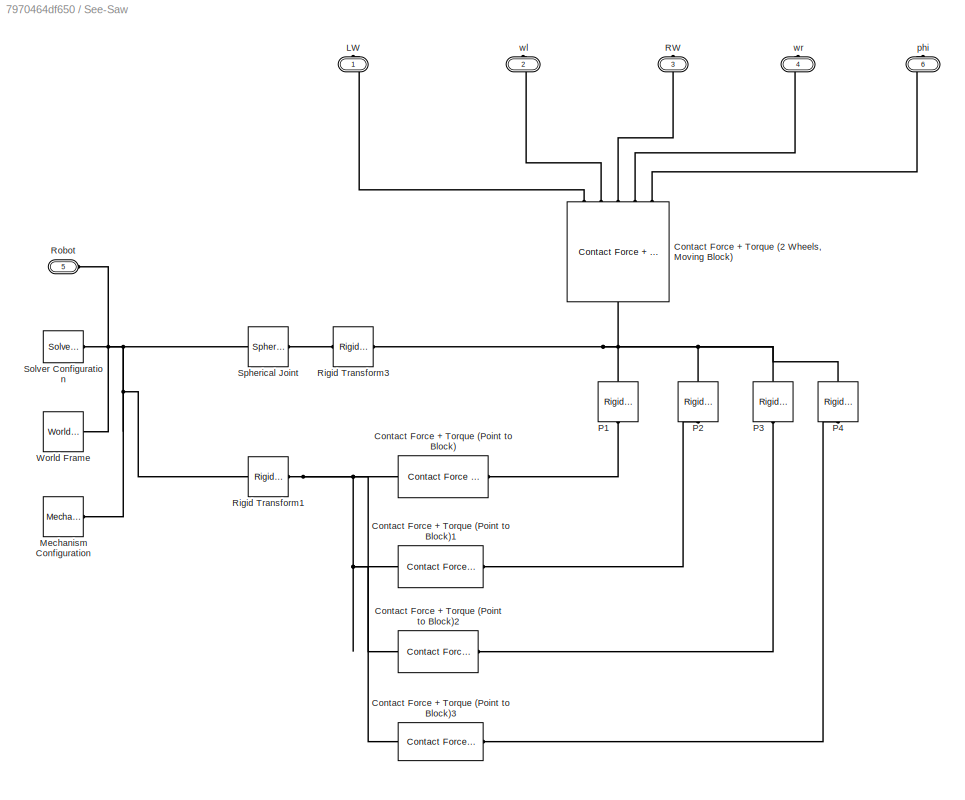
BLOCK [SubSystem] See-Saw
  Ports = [0, 0, 0, 0, 0, 1, 5]
  RequestExecContextInheritance = off
BLOCK [Reference] See-Saw/Contact Force + Torque (2 Wheels, Moving Block)  REF=contactlibV2/Contact Force + Torque
(2 Wheels, Moving Block)
  Ports = [0, 0, 0, 0, 0, 1, 5]
  SourceBlock = contactlibV2/Contact Force + Torque\n(2 Wheels, Moving Block)
  b = b
  b2 = b2
  blockColor = [0.2 0.2 1]
  k = k
  mBlock = 5
  rWheel = wheel.r
  xBlock = 2
  yBlock = 2
  zBlock = 0.01
BLOCK [Reference] See-Saw/Contact Force + Torque (Point to Block)  REF=contactlibV2/Contact Force + Torque
(Point to Block)
  Ports = [0, 0, 0, 0, 0, 1, 1]
  SourceBlock = contactlibV2/Contact Force + Torque\n(Point to Block)
  b = b
  blockColor = [0.2 1 0.2]
  k = k
  mBlock = 5
  xBlock = 5
  yBlock = 5
  zBlock = 0.01
BLOCK [Reference] See-Saw/Contact Force + Torque (Point to Block)1  REF=contactlibV2/Contact Force + Torque
(Point to Block)
  Ports = [0, 0, 0, 0, 0, 1, 1]
  SourceBlock = contactlibV2/Contact Force + Torque\n(Point to Block)
  b = b
  blockColor = [0.2 1 0.2]
  k = k
  mBlock = 5
  xBlock = 5
  yBlock = 5
  zBlock = 0.01
BLOCK [Reference] See-Saw/Contact Force + Torque (Point to Block)2  REF=contactlibV2/Contact Force + Torque
(Point to Block)
  Ports = [0, 0, 0, 0, 0, 1, 1]
  SourceBlock = contactlibV2/Contact Force + Torque\n(Point to Block)
  b = b
  blockColor = [0.2 1 0.2]
  k = k
  mBlock = 5
  xBlock = 5
  yBlock = 5
  zBlock = 0.01
BLOCK [Reference] See-Saw/Contact Force + Torque (Point to Block)3  REF=contactlibV2/Contact Force + Torque
(Point to Block)
  Ports = [0, 0, 0, 0, 0, 1, 1]
  SourceBlock = contactlibV2/Contact Force + Torque\n(Point to Block)
  b = b
  blockColor = [0.2 1 0.2]
  k = k
  mBlock = 5
  xBlock = 5
  yBlock = 5
  zBlock = 0.01
BLOCK [PMIOPort] See-Saw/LW
  Port = 1
  Side = Right
BLOCK [Reference] See-Saw/Mechanism Configuration  REF=sm_lib/Utilities/Mechanism
Configuration
  BlockFunction = simmechanics.library.utilities.mechanism_configuration
  ClassName = MechanismConfiguration
  GravityUnits = m/s^2
  GravityVector = [0 0 -9.80665]
  LinearizationDelta = 0.001
  LogSimulationData = off
  Ports = [0, 0, 0, 0, 0, 0, 1]
  SourceBlock = sm_lib/Utilities/Mechanism\nConfiguration
  SourceType = Mechanism\nConfiguration
  UniformGravity = Constant
BLOCK [Reference] See-Saw/P1  REF=sm_lib/Frames and
Transforms/Rigid
Transform
  BaseAlignAxisA = +Y
  BaseAlignAxisB = +Z
  BlockFunction = simmechanics.library.frames_transforms.rigid_transform
  ClassName = RigidTransform
  FollAlignAxisA = +X
  FollAlignAxisB = +Y
  Ports = [0, 0, 0, 0, 0, 1, 1]
  RotationAngle = 90
  RotationAngleUnits = deg
  RotationArbitraryAxis = [0 0 1]
  RotationMethod = None
  RotationStandardAxis = -X
  SourceBlock = sm_lib/Frames and\nTransforms/Rigid\nTransform
  SourceType = Rigid\nTransform
  TranslationCartesianOffset = [-1 -1 -0.005]
  TranslationLengthUnit = m
  TranslationMethod = Cartesian
  TranslationROffset = 0
  TranslationROffsetUnits = m
  TranslationStandardAxis = +Z
  TranslationStandardOffset = 0
  TranslationThetaOffset = 0
  TranslationThetaOffsetUnits = deg
  TranslationZOffset = 0
  TranslationZOffsetUnits = m
BLOCK [Reference] See-Saw/P2  REF=sm_lib/Frames and
Transforms/Rigid
Transform
  BaseAlignAxisA = +Y
  BaseAlignAxisB = +Z
  BlockFunction = simmechanics.library.frames_transforms.rigid_transform
  ClassName = RigidTransform
  FollAlignAxisA = +X
  FollAlignAxisB = +Y
  Ports = [0, 0, 0, 0, 0, 1, 1]
  RotationAngle = 90
  RotationAngleUnits = deg
  RotationArbitraryAxis = [0 0 1]
  RotationMethod = None
  RotationStandardAxis = -X
  SourceBlock = sm_lib/Frames and\nTransforms/Rigid\nTransform
  SourceType = Rigid\nTransform
  TranslationCartesianOffset = [-1 1 -0.005]
  TranslationLengthUnit = m
  TranslationMethod = Cartesian
  TranslationROffset = 0
  TranslationROffsetUnits = m
  TranslationStandardAxis = +Z
  TranslationStandardOffset = 0
  TranslationThetaOffset = 0
  TranslationThetaOffsetUnits = deg
  TranslationZOffset = 0
  TranslationZOffsetUnits = m
BLOCK [Reference] See-Saw/P3  REF=sm_lib/Frames and
Transforms/Rigid
Transform
  BaseAlignAxisA = +Y
  BaseAlignAxisB = +Z
  BlockFunction = simmechanics.library.frames_transforms.rigid_transform
  ClassName = RigidTransform
  FollAlignAxisA = +X
  FollAlignAxisB = +Y
  Ports = [0, 0, 0, 0, 0, 1, 1]
  RotationAngle = 90
  RotationAngleUnits = deg
  RotationArbitraryAxis = [0 0 1]
  RotationMethod = None
  RotationStandardAxis = -X
  SourceBlock = sm_lib/Frames and\nTransforms/Rigid\nTransform
  SourceType = Rigid\nTransform
  TranslationCartesianOffset = [1 -1 -0.005]
  TranslationLengthUnit = m
  TranslationMethod = Cartesian
  TranslationROffset = 0
  TranslationROffsetUnits = m
  TranslationStandardAxis = +Z
  TranslationStandardOffset = 0
  TranslationThetaOffset = 0
  TranslationThetaOffsetUnits = deg
  TranslationZOffset = 0
  TranslationZOffsetUnits = m
BLOCK [Reference] See-Saw/P4  REF=sm_lib/Frames and
Transforms/Rigid
Transform
  BaseAlignAxisA = +Y
  BaseAlignAxisB = +Z
  BlockFunction = simmechanics.library.frames_transforms.rigid_transform
  ClassName = RigidTransform
  FollAlignAxisA = +X
  FollAlignAxisB = +Y
  Ports = [0, 0, 0, 0, 0, 1, 1]
  RotationAngle = 90
  RotationAngleUnits = deg
  RotationArbitraryAxis = [0 0 1]
  RotationMethod = None
  RotationStandardAxis = -X
  SourceBlock = sm_lib/Frames and\nTransforms/Rigid\nTransform
  SourceType = Rigid\nTransform
  TranslationCartesianOffset = [1 1 -0.005]
  TranslationLengthUnit = m
  TranslationMethod = Cartesian
  TranslationROffset = 0
  TranslationROffsetUnits = m
  TranslationStandardAxis = +Z
  TranslationStandardOffset = 0
  TranslationThetaOffset = 0
  TranslationThetaOffsetUnits = deg
  TranslationZOffset = 0
  TranslationZOffsetUnits = m
BLOCK [PMIOPort] See-Saw/RW
  Port = 3
  Side = Right
BLOCK [Reference] See-Saw/Rigid Transform1  REF=sm_lib/Frames and
Transforms/Rigid
Transform
  BaseAlignAxisA = +Y
  BaseAlignAxisB = +Z
  BlockFunction = simmechanics.library.frames_transforms.rigid_transform
  ClassName = RigidTransform
  FollAlignAxisA = +X
  FollAlignAxisB = +Y
  LogSimulationData = off
  Ports = [0, 0, 0, 0, 0, 1, 1]
  RotationAngle = 90
  RotationAngleUnits = deg
  RotationArbitraryAxis = [0 0 1]
  RotationMatrix = [1 0 0; 0 1 0; 0 0 1]
  RotationMethod = None
  RotationStandardAxis = -X
  SourceBlock = sm_lib/Frames and\nTransforms/Rigid\nTransform
  SourceType = Rigid\nTransform
  TranslationCartesianOffset = [0 0 -0.2]
  TranslationLengthUnit = m
  TranslationMethod = Cartesian
  TranslationROffset = 0
  TranslationROffsetUnits = m
  TranslationStandardAxis = +Z
  TranslationStandardOffset = 0
  TranslationThetaOffset = 0
  TranslationThetaOffsetUnits = deg
  TranslationZOffset = 0
  TranslationZOffsetUnits = m
BLOCK [Reference] See-Saw/Rigid Transform3  REF=sm_lib/Frames and
Transforms/Rigid
Transform
  BaseAlignAxisA = +Y
  BaseAlignAxisB = +Z
  BlockFunction = simmechanics.library.frames_transforms.rigid_transform
  ClassName = RigidTransform
  FollAlignAxisA = +X
  FollAlignAxisB = +Y
  Ports = [0, 0, 0, 0, 0, 1, 1]
  RotationAngle = 90
  RotationAngleUnits = deg
  RotationArbitraryAxis = [0 0 1]
  RotationMethod = None
  RotationStandardAxis = -X
  SourceBlock = sm_lib/Frames and\nTransforms/Rigid\nTransform
  SourceType = Rigid\nTransform
  TranslationCartesianOffset = [0 0 -(wheel.r+0.01)]
  TranslationLengthUnit = m
  TranslationMethod = Cartesian
  TranslationROffset = 0
  TranslationROffsetUnits = m
  TranslationStandardAxis = +Z
  TranslationStandardOffset = 0
  TranslationThetaOffset = 0
  TranslationThetaOffsetUnits = deg
  TranslationZOffset = 0
  TranslationZOffsetUnits = m
BLOCK [PMIOPort] See-Saw/Robot
  Port = 5
  Side = Left
BLOCK [Reference] See-Saw/Solver Configuration  REF=nesl_utility/Solver
Configuration
  AbsTol = 1e-06
  Accelerate = off
  AutomaticFiltering = on
  DelaysMemoryBudget = 1024
  DoDC = off
  DoFixedCost = off
  EnableSwitchedLinearOptims = on
  FilteringTimeConstant = 0.001
  FrequencyDomain = off
  Harmonics = []
  LeftPortType = input
  LinearAlgebra = Sparse
  LocalSolverChoice = NE_BACKWARD_EULER_ADVANCER
  LocalSolverSampleTime = 0.001
  MaxModeIter = 2
  MaxNonlinIter = 3
  MinStep = 1e-09
  PhysicalDomain = network_engine_domain
  Ports = [0, 0, 0, 0, 0, 0, 1]
  Profile = off
  RelTol = 0.001
  ResidualTolerance = 1e-09
  RightPortType = generic
  SimulateNoise = off
  SourceBlock = nesl_utility/Solver\nConfiguration
  SourceType = Solver\nConfiguration
  SubClassName = solver
  ToWorkspace = off
  Tones = []
  UseCCode = off
  UseLocalSampling = off
  UseLocalSolver = off
BLOCK [Reference] See-Saw/Spherical Joint  REF=sm_lib/Joints/Spherical
Joint
  ActuateTorque = off
  ActuateTorqueX = off
  ActuateTorqueY = off
  ActuateTorqueZ = off
  ActuationFrame = BaseFrame
  BlockFunction = simmechanics.library.joints.spherical_joint
  ClassName = SphericalJoint
  CompositeWrenchDir = FollowerOnBase
  CompositeWrenchFrame = BaseFrame
  DampingCoefficient = 1.5
  DampingCoefficientUnits = N*m/(rad/s)
  DefPosBaseAlignAxisA = +Y
  DefPosBaseAlignAxisB = +Z
  DefPosFollAlignAxisA = +X
  DefPosFollAlignAxisB = +Y
  DefPosRotationAngle = 0
  DefPosRotationAngleUnits = deg
  DefPosRotationArbitraryAxis = [0 0 1]
  DefPosRotationMatrix = [1 0 0; 0 1 0; 0 0 1]
  DefPosRotationMethod = None
  DefPosRotationStandardAxis = +Z
  EqPosBaseAlignAxisA = +Y
  EqPosBaseAlignAxisB = +Z
  EqPosFollAlignAxisA = +X
  EqPosFollAlignAxisB = +Y
  EqPosRotationAngle = 0
  EqPosRotationAngleUnits = deg
  EqPosRotationArbitraryAxis = [0 0 1]
  EqPosRotationMatrix = [1 0 0; 0 1 0; 0 0 1]
  EqPosRotationMethod = None
  EqPosRotationStandardAxis = +Z
  LogSimulationData = off
  MotionActuationMode = ComputedMotion
  Ports = [0, 0, 0, 0, 0, 1, 1]
  PositionTargetBaseAlignAxisA = +Y
  PositionTargetBaseAlignAxisB = +Z
  PositionTargetFollAlignAxisA = +X
  PositionTargetFollAlignAxisB = +Y
  PositionTargetPriority = High
  PositionTargetRotationAngle = 0
  PositionTargetRotationAngleUnits = deg
  PositionTargetRotationArbitraryAxis = [0 0 1]
  PositionTargetRotationMatrix = [1 0 0; 0 1 0; 0 0 1]
  PositionTargetRotationMethod = None
  PositionTargetRotationStandardAxis = +Z
  PositionTargetSpecify = off
  SenseAcceleration = off
  SenseAccelerationX = off
  SenseAccelerationY = off
  SenseAccelerationZ = off
  SenseConstraintForce = off
  SenseConstraintForceX = off
  SenseConstraintForceY = off
  SenseConstraintForceZ = off
  SenseConstraintTorque = off
  SenseConstraintTorqueX = off
  SenseConstraintTorqueY = off
  SenseConstraintTorqueZ = off
  SensePosition = off
  SenseTorqueForce = off
  SenseTorqueX = off
  SenseTorqueY = off
  SenseTorqueZ = off
  SenseTotalForce = off
  SenseTotalForceX = off
  SenseTotalForceY = off
  SenseTotalForceZ = off
  SenseTotalTorque = off
  SenseTotalTorqueX = off
  SenseTotalTorqueY = off
  SenseTotalTorqueZ = off
  SenseVelocity = off
  SenseVelocityX = off
  SenseVelocityY = off
  SenseVelocityZ = off
  SensingFrame = BaseFrame
  SourceBlock = sm_lib/Joints/Spherical\nJoint
  SourceType = Spherical\nJoint
  SpringStiffness = 12
  SpringStiffnessUnits = N*m/rad
  TorqueActuationMode = NoTorque
  VelocityTargetInFollowerFrame = on
  VelocityTargetPriority = High
  VelocityTargetSpecify = off
  VelocityTargetValue = [0 0 0]
  VelocityTargetValueUnits = deg/s
BLOCK [Reference] See-Saw/World Frame  REF=sm_lib/Frames and
Transforms/World Frame
  BlockFunction = simmechanics.library.frames_transforms.world_frame
  ClassName = WorldFrame
  LogSimulationData = off
  Ports = [0, 0, 0, 0, 0, 0, 1]
  SourceBlock = sm_lib/Frames and\nTransforms/World Frame
  SourceType = World Frame
BLOCK [PMIOPort] See-Saw/phi
  Port = 6
  Side = Right
BLOCK [PMIOPort] See-Saw/wl
  Port = 2
  Side = Right
BLOCK [PMIOPort] See-Saw/wr
  Port = 4
  Side = Right
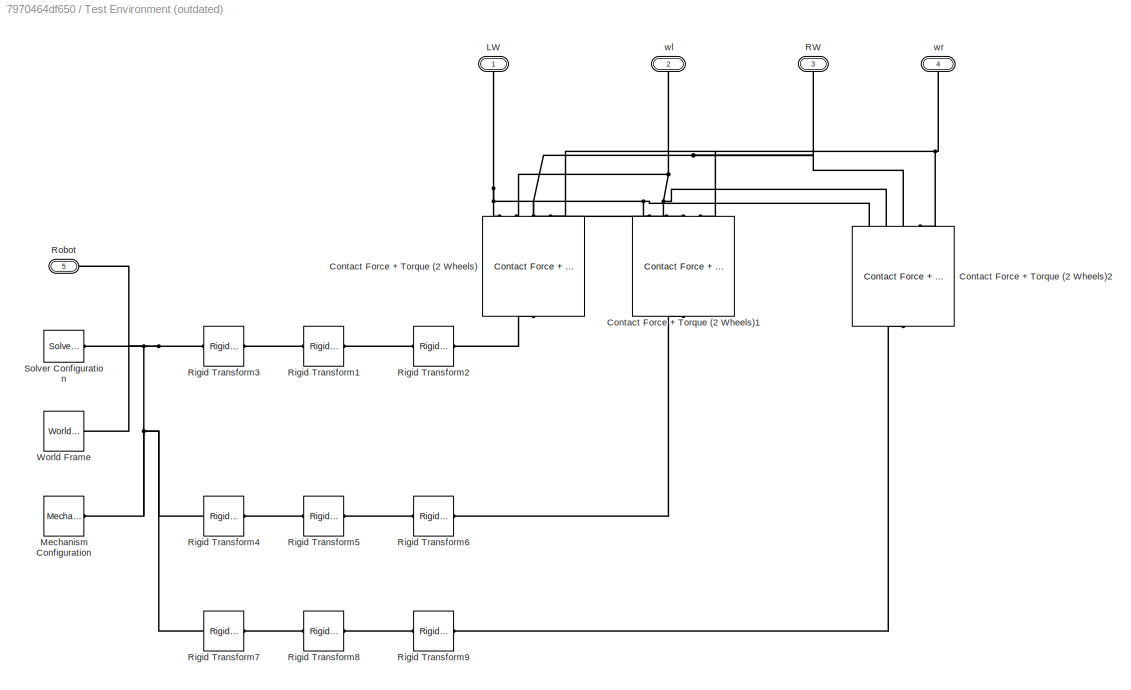
BLOCK [SubSystem] Test Environment (outdated)
  Ports = [0, 0, 0, 0, 0, 1, 4]
  RequestExecContextInheritance = off
BLOCK [Reference] Test Environment (outdated)/Contact Force + Torque (2 Wheels)  REF=contactlibV2/Contact Force + Torque
(2 Wheels)
  Ports = [0, 0, 0, 0, 0, 1, 5]
  SourceBlock = contactlibV2/Contact Force + Torque\n(2 Wheels)
  b = 25
  b2 = 10
  blockColor = [0.2 0.2 1]
  k = 1500
  mBlock = 5
  rWheel = wheel.r
  xBlock = 3
  yBlock = 3
  zBlock = 0.01
BLOCK [Reference] Test Environment (outdated)/Contact Force + Torque (2 Wheels)1  REF=contactlibV2/Contact Force + Torque
(2 Wheels)
  Ports = [0, 0, 0, 0, 0, 1, 5]
  SourceBlock = contactlibV2/Contact Force + Torque\n(2 Wheels)
  b = 25
  b2 = 10
  blockColor = [1 0.2 0.2]
  k = 1500
  mBlock = 5
  rWheel = wheel.r
  xBlock = 3
  yBlock = 3
  zBlock = 0.01
BLOCK [Reference] Test Environment (outdated)/Contact Force + Torque (2 Wheels)2  REF=contactlibV2/Contact Force + Torque
(2 Wheels)
  Ports = [0, 0, 0, 0, 0, 1, 5]
  SourceBlock = contactlibV2/Contact Force + Torque\n(2 Wheels)
  b = 25
  b2 = 10
  blockColor = [0.2 1 0.2]
  k = 1500
  mBlock = 5
  rWheel = wheel.r
  xBlock = 3
  yBlock = 3
  zBlock = 0.01
BLOCK [PMIOPort] Test Environment (outdated)/LW
  Port = 1
  Side = Right
BLOCK [Reference] Test Environment (outdated)/Mechanism Configuration  REF=sm_lib/Utilities/Mechanism
Configuration
  BlockFunction = simmechanics.library.utilities.mechanism_configuration
  ClassName = MechanismConfiguration
  GravityUnits = m/s^2
  GravityVector = [0 0 -9.80665]
  LinearizationDelta = 0.001
  LogSimulationData = off
  Ports = [0, 0, 0, 0, 0, 0, 1]
  SourceBlock = sm_lib/Utilities/Mechanism\nConfiguration
  SourceType = Mechanism\nConfiguration
  UniformGravity = Constant
BLOCK [PMIOPort] Test Environment (outdated)/RW
  Port = 3
  Side = Right
BLOCK [Reference] Test Environment (outdated)/Rigid Transform1  REF=sm_lib/Frames and
Transforms/Rigid
Transform
  BaseAlignAxisA = +Y
  BaseAlignAxisB = +Z
  BlockFunction = simmechanics.library.frames_transforms.rigid_transform
  ClassName = RigidTransform
  FollAlignAxisA = +X
  FollAlignAxisB = +Y
  Ports = [0, 0, 0, 0, 0, 1, 1]
  RotationAngle = 5
  RotationAngleUnits = deg
  RotationArbitraryAxis = [0 0 1]
  RotationMethod = StandardAxis
  RotationStandardAxis = +Y
  SourceBlock = sm_lib/Frames and\nTransforms/Rigid\nTransform
  SourceType = Rigid\nTransform
  TranslationCartesianOffset = [0 0 -1.25]
  TranslationLengthUnit = m
  TranslationMethod = None
  TranslationROffset = 0
  TranslationROffsetUnits = m
  TranslationStandardAxis = +Z
  TranslationStandardOffset = 0
  TranslationThetaOffset = 0
  TranslationThetaOffsetUnits = deg
  TranslationZOffset = 0
  TranslationZOffsetUnits = m
BLOCK [Reference] Test Environment (outdated)/Rigid Transform2  REF=sm_lib/Frames and
Transforms/Rigid
Transform
  BaseAlignAxisA = +Y
  BaseAlignAxisB = +Z
  BlockFunction = simmechanics.library.frames_transforms.rigid_transform
  ClassName = RigidTransform
  FollAlignAxisA = +X
  FollAlignAxisB = +Y
  Ports = [0, 0, 0, 0, 0, 1, 1]
  RotationAngle = 0
  RotationAngleUnits = deg
  RotationArbitraryAxis = [0 0 1]
  RotationMethod = StandardAxis
  RotationStandardAxis = +X
  SourceBlock = sm_lib/Frames and\nTransforms/Rigid\nTransform
  SourceType = Rigid\nTransform
  TranslationCartesianOffset = [0 0 -1.25]
  TranslationLengthUnit = m
  TranslationMethod = None
  TranslationROffset = 0
  TranslationROffsetUnits = m
  TranslationStandardAxis = +Z
  TranslationStandardOffset = 0
  TranslationThetaOffset = 0
  TranslationThetaOffsetUnits = deg
  TranslationZOffset = 0
  TranslationZOffsetUnits = m
BLOCK [Reference] Test Environment (outdated)/Rigid Transform3  REF=sm_lib/Frames and
Transforms/Rigid
Transform
  BaseAlignAxisA = +Y
  BaseAlignAxisB = +Z
  BlockFunction = simmechanics.library.frames_transforms.rigid_transform
  ClassName = RigidTransform
  FollAlignAxisA = +X
  FollAlignAxisB = +Y
  LogSimulationData = off
  Ports = [0, 0, 0, 0, 0, 1, 1]
  RotationAngle = 0
  RotationAngleUnits = deg
  RotationArbitraryAxis = [0 0 1]
  RotationMatrix = [1 0 0; 0 1 0; 0 0 1]
  RotationMethod = StandardAxis
  RotationStandardAxis = +Z
  SourceBlock = sm_lib/Frames and\nTransforms/Rigid\nTransform
  SourceType = Rigid\nTransform
  TranslationCartesianOffset = [0 0 -(wheel.r+0.01)]
  TranslationLengthUnit = m
  TranslationMethod = Cartesian
  TranslationROffset = 0
  TranslationROffsetUnits = m
  TranslationStandardAxis = +Z
  TranslationStandardOffset = 0
  TranslationThetaOffset = 0
  TranslationThetaOffsetUnits = deg
  TranslationZOffset = 0
  TranslationZOffsetUnits = m
BLOCK [Reference] Test Environment (outdated)/Rigid Transform4  REF=sm_lib/Frames and
Transforms/Rigid
Transform
  BaseAlignAxisA = +Y
  BaseAlignAxisB = +Z
  BlockFunction = simmechanics.library.frames_transforms.rigid_transform
  ClassName = RigidTransform
  FollAlignAxisA = +X
  FollAlignAxisB = +Y
  LogSimulationData = off
  Ports = [0, 0, 0, 0, 0, 1, 1]
  RotationAngle = 115
  RotationAngleUnits = deg
  RotationArbitraryAxis = [0 0 1]
  RotationMatrix = [1 0 0; 0 1 0; 0 0 1]
  RotationMethod = StandardAxis
  RotationStandardAxis = +Z
  SourceBlock = sm_lib/Frames and\nTransforms/Rigid\nTransform
  SourceType = Rigid\nTransform
  TranslationCartesianOffset = [3 -0 -0.35]
  TranslationLengthUnit = m
  TranslationMethod = Cartesian
  TranslationROffset = 0
  TranslationROffsetUnits = m
  TranslationStandardAxis = +Z
  TranslationStandardOffset = 0
  TranslationThetaOffset = 0
  TranslationThetaOffsetUnits = deg
  TranslationZOffset = 0
  TranslationZOffsetUnits = m
BLOCK [Reference] Test Environment (outdated)/Rigid Transform5  REF=sm_lib/Frames and
Transforms/Rigid
Transform
  BaseAlignAxisA = +Y
  BaseAlignAxisB = +Z
  BlockFunction = simmechanics.library.frames_transforms.rigid_transform
  ClassName = RigidTransform
  FollAlignAxisA = +X
  FollAlignAxisB = +Y
  Ports = [0, 0, 0, 0, 0, 1, 1]
  RotationAngle = -1
  RotationAngleUnits = deg
  RotationArbitraryAxis = [0 0 1]
  RotationMethod = StandardAxis
  RotationStandardAxis = +Y
  SourceBlock = sm_lib/Frames and\nTransforms/Rigid\nTransform
  SourceType = Rigid\nTransform
  TranslationCartesianOffset = [0 0 -1.25]
  TranslationLengthUnit = m
  TranslationMethod = None
  TranslationROffset = 0
  TranslationROffsetUnits = m
  TranslationStandardAxis = +Z
  TranslationStandardOffset = 0
  TranslationThetaOffset = 0
  TranslationThetaOffsetUnits = deg
  TranslationZOffset = 0
  TranslationZOffsetUnits = m
BLOCK [Reference] Test Environment (outdated)/Rigid Transform6  REF=sm_lib/Frames and
Transforms/Rigid
Transform
  BaseAlignAxisA = +Y
  BaseAlignAxisB = +Z
  BlockFunction = simmechanics.library.frames_transforms.rigid_transform
  ClassName = RigidTransform
  FollAlignAxisA = +X
  FollAlignAxisB = +Y
  Ports = [0, 0, 0, 0, 0, 1, 1]
  RotationAngle = 1
  RotationAngleUnits = deg
  RotationArbitraryAxis = [0 0 1]
  RotationMethod = StandardAxis
  RotationStandardAxis = +X
  SourceBlock = sm_lib/Frames and\nTransforms/Rigid\nTransform
  SourceType = Rigid\nTransform
  TranslationCartesianOffset = [0 0 -1.25]
  TranslationLengthUnit = m
  TranslationMethod = None
  TranslationROffset = 0
  TranslationROffsetUnits = m
  TranslationStandardAxis = +Z
  TranslationStandardOffset = 0
  TranslationThetaOffset = 0
  TranslationThetaOffsetUnits = deg
  TranslationZOffset = 0
  TranslationZOffsetUnits = m
BLOCK [Reference] Test Environment (outdated)/Rigid Transform7  REF=sm_lib/Frames and
Transforms/Rigid
Transform
  BaseAlignAxisA = +Y
  BaseAlignAxisB = +Z
  BlockFunction = simmechanics.library.frames_transforms.rigid_transform
  ClassName = RigidTransform
  FollAlignAxisA = +X
  FollAlignAxisB = +Y
  LogSimulationData = off
  Ports = [0, 0, 0, 0, 0, 1, 1]
  RotationAngle = 0
  RotationAngleUnits = deg
  RotationArbitraryAxis = [0 0 1]
  RotationMatrix = [1 0 0; 0 1 0; 0 0 1]
  RotationMethod = StandardAxis
  RotationStandardAxis = +Z
  SourceBlock = sm_lib/Frames and\nTransforms/Rigid\nTransform
  SourceType = Rigid\nTransform
  TranslationCartesianOffset = [5 -2 -0.55]
  TranslationLengthUnit = m
  TranslationMethod = Cartesian
  TranslationROffset = 0
  TranslationROffsetUnits = m
  TranslationStandardAxis = +Z
  TranslationStandardOffset = 0
  TranslationThetaOffset = 0
  TranslationThetaOffsetUnits = deg
  TranslationZOffset = 0
  TranslationZOffsetUnits = m
BLOCK [Reference] Test Environment (outdated)/Rigid Transform8  REF=sm_lib/Frames and
Transforms/Rigid
Transform
  BaseAlignAxisA = +Y
  BaseAlignAxisB = +Z
  BlockFunction = simmechanics.library.frames_transforms.rigid_transform
  ClassName = RigidTransform
  FollAlignAxisA = +X
  FollAlignAxisB = +Y
  Ports = [0, 0, 0, 0, 0, 1, 1]
  RotationAngle = -4
  RotationAngleUnits = deg
  RotationArbitraryAxis = [0 0 1]
  RotationMethod = StandardAxis
  RotationStandardAxis = +Y
  SourceBlock = sm_lib/Frames and\nTransforms/Rigid\nTransform
  SourceType = Rigid\nTransform
  TranslationCartesianOffset = [0 0 -1.25]
  TranslationLengthUnit = m
  TranslationMethod = None
  TranslationROffset = 0
  TranslationROffsetUnits = m
  TranslationStandardAxis = +Z
  TranslationStandardOffset = 0
  TranslationThetaOffset = 0
  TranslationThetaOffsetUnits = deg
  TranslationZOffset = 0
  TranslationZOffsetUnits = m
BLOCK [Reference] Test Environment (outdated)/Rigid Transform9  REF=sm_lib/Frames and
Transforms/Rigid
Transform
  BaseAlignAxisA = +Y
  BaseAlignAxisB = +Z
  BlockFunction = simmechanics.library.frames_transforms.rigid_transform
  ClassName = RigidTransform
  FollAlignAxisA = +X
  FollAlignAxisB = +Y
  Ports = [0, 0, 0, 0, 0, 1, 1]
  RotationAngle = 5
  RotationAngleUnits = deg
  RotationArbitraryAxis = [0 0 1]
  RotationMethod = StandardAxis
  RotationStandardAxis = +X
  SourceBlock = sm_lib/Frames and\nTransforms/Rigid\nTransform
  SourceType = Rigid\nTransform
  TranslationCartesianOffset = [0 0 -1.25]
  TranslationLengthUnit = m
  TranslationMethod = None
  TranslationROffset = 0
  TranslationROffsetUnits = m
  TranslationStandardAxis = +Z
  TranslationStandardOffset = 0
  TranslationThetaOffset = 0
  TranslationThetaOffsetUnits = deg
  TranslationZOffset = 0
  TranslationZOffsetUnits = m
BLOCK [PMIOPort] Test Environment (outdated)/Robot
  Port = 5
  Side = Left
BLOCK [Reference] Test Environment (outdated)/Solver Configuration  REF=nesl_utility/Solver
Configuration
  AbsTol = 1e-06
  Accelerate = off
  AutomaticFiltering = on
  DelaysMemoryBudget = 1024
  DoDC = off
  DoFixedCost = off
  EnableSwitchedLinearOptims = on
  FilteringTimeConstant = 0.001
  FrequencyDomain = off
  Harmonics = []
  LeftPortType = input
  LinearAlgebra = Sparse
  LocalSolverChoice = NE_BACKWARD_EULER_ADVANCER
  LocalSolverSampleTime = 0.001
  MaxModeIter = 2
  MaxNonlinIter = 3
  MinStep = 1e-09
  PhysicalDomain = network_engine_domain
  Ports = [0, 0, 0, 0, 0, 0, 1]
  Profile = off
  RelTol = 0.001
  ResidualTolerance = 1e-09
  RightPortType = generic
  SimulateNoise = off
  SourceBlock = nesl_utility/Solver\nConfiguration
  SourceType = Solver\nConfiguration
  SubClassName = solver
  ToWorkspace = off
  Tones = []
  UseCCode = off
  UseLocalSampling = off
  UseLocalSolver = off
BLOCK [Reference] Test Environment (outdated)/World Frame  REF=sm_lib/Frames and
Transforms/World Frame
  BlockFunction = simmechanics.library.frames_transforms.world_frame
  ClassName = WorldFrame
  LogSimulationData = off
  Ports = [0, 0, 0, 0, 0, 0, 1]
  SourceBlock = sm_lib/Frames and\nTransforms/World Frame
  SourceType = World Frame
BLOCK [PMIOPort] Test Environment (outdated)/wl
  Port = 2
  Side = Right
BLOCK [PMIOPort] Test Environment (outdated)/wr
  Port = 4
  Side = Right
PLINE Block and Ramp/Contact Force + Torque (2 Wheels)1:LConn1 -- Block and Ramp/Rigid Transform1:RConn1
PNET net1: Block and Ramp/Contact Force + Torque (2 Wheels)1:RConn1 -- Block and Ramp/Contact Force + Torque (2 Wheels)2:RConn1 -- Block and Ramp/Contact Force + Torque (2 Wheels):RConn1 -- Block and Ramp/LW:RConn1
PNET net2: Block and Ramp/Contact Force + Torque (2 Wheels)1:RConn2 -- Block and Ramp/Contact Force + Torque (2 Wheels)2:RConn2 -- Block and Ramp/Contact Force + Torque (2 Wheels):RConn2 -- Block and Ramp/wl:RConn1
PNET net3: Block and Ramp/Contact Force + Torque (2 Wheels)1:RConn3 -- Block and Ramp/Contact Force + Torque (2 Wheels)2:RConn3 -- Block and Ramp/Contact Force + Torque (2 Wheels):RConn3 -- Block and Ramp/RW:RConn1
PNET net4: Block and Ramp/Contact Force + Torque (2 Wheels)1:RConn4 -- Block and Ramp/Contact Force + Torque (2 Wheels)2:RConn4 -- Block and Ramp/Contact Force + Torque (2 Wheels):RConn4 -- Block and Ramp/wr:RConn1
PNET net5: Block and Ramp/Contact Force + Torque (2 Wheels)1:RConn5 -- Block and Ramp/Contact Force + Torque (2 Wheels)2:RConn5 -- Block and Ramp/Contact Force + Torque (2 Wheels):RConn5 -- Block and Ramp/phi:RConn1
PLINE Block and Ramp/Contact Force + Torque (2 Wheels)2:LConn1 -- Block and Ramp/Rigid Transform2:RConn1
PLINE Block and Ramp/Contact Force + Torque (2 Wheels):LConn1 -- Block and Ramp/Rigid Transform3:RConn1
PNET net6: Block and Ramp/Mechanism Configuration:RConn1 -- Block and Ramp/Rigid Transform1:LConn1 -- Block and Ramp/Rigid Transform2:LConn1 -- Block and Ramp/Rigid Transform3:LConn1 -- Block and Ramp/Robot:RConn1 -- Block and Ramp/Solver Configuration:RConn1 -- Block and Ramp/World Frame:RConn1
PNET net7: Rope Bridge/ BRIDGE LINK 1:LConn1 -- Rope Bridge/Joint Transform1:LConn1 -- Rope Bridge/Joint Transform:RConn1
PNET net8: Rope Bridge/ BRIDGE LINK 1:RConn1 -- Rope Bridge/ BRIDGE LINK 2:RConn1 -- Rope Bridge/ BRIDGE LINK 3:RConn1 -- Rope Bridge/ BRIDGE LINK 4:RConn1 -- Rope Bridge/ BRIDGE LINK 5:RConn1 -- Rope Bridge/ BRIDGE LINK 6:RConn1 -- Rope Bridge/GROUND Contact Force + Torque (2 Wheels)1:RConn1 -- Rope Bridge/LW:RConn1 -- Rope Bridge/RAMP 1 Contact Force + Torque (2 Wheels):RConn1 -- Rope Bridge/RAMP 2 Contact Force + Torque (2 Wheels):RConn1
PNET net9: Rope Bridge/ BRIDGE LINK 1:RConn2 -- Rope Bridge/ BRIDGE LINK 2:RConn2 -- Rope Bridge/ BRIDGE LINK 3:RConn2 -- Rope Bridge/ BRIDGE LINK 4:RConn2 -- Rope Bridge/ BRIDGE LINK 5:RConn2 -- Rope Bridge/ BRIDGE LINK 6:RConn2 -- Rope Bridge/GROUND Contact Force + Torque (2 Wheels)1:RConn2 -- Rope Bridge/RAMP 1 Contact Force + Torque (2 Wheels):RConn2 -- Rope Bridge/RAMP 2 Contact Force + Torque (2 Wheels):RConn2 -- Rope Bridge/wl:RConn1
PNET net10: Rope Bridge/ BRIDGE LINK 1:RConn3 -- Rope Bridge/ BRIDGE LINK 2:RConn3 -- Rope Bridge/ BRIDGE LINK 3:RConn3 -- Rope Bridge/ BRIDGE LINK 4:RConn3 -- Rope Bridge/ BRIDGE LINK 5:RConn3 -- Rope Bridge/ BRIDGE LINK 6:RConn3 -- Rope Bridge/GROUND Contact Force + Torque (2 Wheels)1:RConn3 -- Rope Bridge/RAMP 1 Contact Force + Torque (2 Wheels):RConn3 -- Rope Bridge/RAMP 2 Contact Force + Torque (2 Wheels):RConn3 -- Rope Bridge/RW:RConn1
PNET net11: Rope Bridge/ BRIDGE LINK 1:RConn4 -- Rope Bridge/ BRIDGE LINK 2:RConn4 -- Rope Bridge/ BRIDGE LINK 3:RConn4 -- Rope Bridge/ BRIDGE LINK 4:RConn4 -- Rope Bridge/ BRIDGE LINK 5:RConn4 -- Rope Bridge/ BRIDGE LINK 6:RConn4 -- Rope Bridge/GROUND Contact Force + Torque (2 Wheels)1:RConn4 -- Rope Bridge/RAMP 1 Contact Force + Torque (2 Wheels):RConn4 -- Rope Bridge/RAMP 2 Contact Force + Torque (2 Wheels):RConn4 -- Rope Bridge/wr:RConn1
PNET net12: Rope Bridge/ BRIDGE LINK 1:RConn5 -- Rope Bridge/ BRIDGE LINK 2:RConn5 -- Rope Bridge/ BRIDGE LINK 3:RConn5 -- Rope Bridge/ BRIDGE LINK 4:RConn5 -- Rope Bridge/ BRIDGE LINK 5:RConn5 -- Rope Bridge/ BRIDGE LINK 6:RConn5 -- Rope Bridge/GROUND Contact Force + Torque (2 Wheels)1:RConn5 -- Rope Bridge/RAMP 1 Contact Force + Torque (2 Wheels):RConn5 -- Rope Bridge/RAMP 2 Contact Force + Torque (2 Wheels):RConn5 -- Rope Bridge/phi:RConn1
PNET net13: Rope Bridge/ BRIDGE LINK 2:LConn1 -- Rope Bridge/Joint Transform2:RConn1 -- Rope Bridge/Joint Transform3:LConn1
PNET net14: Rope Bridge/ BRIDGE LINK 3:LConn1 -- Rope Bridge/Joint Transform4:RConn1 -- Rope Bridge/Joint Transform5:LConn1
PNET net15: Rope Bridge/ BRIDGE LINK 4:LConn1 -- Rope Bridge/Joint Transform6:RConn1 -- Rope Bridge/Joint Transform7:LConn1
PNET net16: Rope Bridge/ BRIDGE LINK 5:LConn1 -- Rope Bridge/Joint Transform8:RConn1 -- Rope Bridge/Joint Transform9:LConn1
PNET net17: Rope Bridge/ BRIDGE LINK 6:LConn1 -- Rope Bridge/Joint Transform10:RConn1 -- Rope Bridge/Joint Transform11:LConn1
PNET net18: Rope Bridge/GROUND Contact Force + Torque (2 Wheels)1:LConn1 -- Rope Bridge/Rigid Transform1:RConn1 -- Rope Bridge/Rigid Transform2:LConn1 -- Rope Bridge/Rigid Transform:LConn1
PLINE Rope Bridge/Joint Transform10:LConn1 -- Rope Bridge/Revolute Joint5:RConn1
PLINE Rope Bridge/Joint Transform11:RConn1 -- Rope Bridge/Revolute Joint6:LConn1
PLINE Rope Bridge/Joint Transform1:RConn1 -- Rope Bridge/Revolute Joint1:LConn1
PLINE Rope Bridge/Joint Transform2:LConn1 -- Rope Bridge/Revolute Joint1:RConn1
PLINE Rope Bridge/Joint Transform3:RConn1 -- Rope Bridge/Revolute Joint2:LConn1
PLINE Rope Bridge/Joint Transform4:LConn1 -- Rope Bridge/Revolute Joint2:RConn1
PLINE Rope Bridge/Joint Transform5:RConn1 -- Rope Bridge/Revolute Joint3:LConn1
PLINE Rope Bridge/Joint Transform6:LConn1 -- Rope Bridge/Revolute Joint3:RConn1
PLINE Rope Bridge/Joint Transform7:RConn1 -- Rope Bridge/Revolute Joint4:LConn1
PLINE Rope Bridge/Joint Transform8:LConn1 -- Rope Bridge/Revolute Joint4:RConn1
PLINE Rope Bridge/Joint Transform9:RConn1 -- Rope Bridge/Revolute Joint5:LConn1
PLINE Rope Bridge/Joint Transform:LConn1 -- Rope Bridge/Revolute Joint:RConn1
PNET net19: Rope Bridge/Mechanism Configuration:RConn1 -- Rope Bridge/Rigid Transform1:LConn1 -- Rope Bridge/Robot:RConn1 -- Rope Bridge/Solver Configuration:RConn1 -- Rope Bridge/World Frame:RConn1
PNET net20: Rope Bridge/RAMP 1 Contact Force + Torque (2 Wheels):LConn1 -- Rope Bridge/Ramp to Bridge:LConn1 -- Rope Bridge/Rigid Transform:RConn1
PNET net21: Rope Bridge/RAMP 2 Contact Force + Torque (2 Wheels):LConn1 -- Rope Bridge/Ramp to Bridge Transform:LConn1 -- Rope Bridge/Rigid Transform3:RConn1
PLINE Rope Bridge/Ramp to Bridge Transform:RConn1 -- Rope Bridge/Revolute Joint6:RConn1
PLINE Rope Bridge/Ramp to Bridge:RConn1 -- Rope Bridge/Revolute Joint:LConn1
PLINE Rope Bridge/Rigid Transform2:RConn1 -- Rope Bridge/Rigid Transform3:LConn1
PNET net22: See-Saw/Contact Force + Torque (2 Wheels, Moving Block):LConn1 -- See-Saw/P1:LConn1 -- See-Saw/P2:LConn1 -- See-Saw/P3:LConn1 -- See-Saw/P4:LConn1 -- See-Saw/Rigid Transform3:RConn1
PLINE See-Saw/Contact Force + Torque (2 Wheels, Moving Block):RConn1 -- See-Saw/LW:RConn1
PLINE See-Saw/Contact Force + Torque (2 Wheels, Moving Block):RConn2 -- See-Saw/wl:RConn1
PLINE See-Saw/Contact Force + Torque (2 Wheels, Moving Block):RConn3 -- See-Saw/RW:RConn1
PLINE See-Saw/Contact Force + Torque (2 Wheels, Moving Block):RConn4 -- See-Saw/wr:RConn1
PLINE See-Saw/Contact Force + Torque (2 Wheels, Moving Block):RConn5 -- See-Saw/phi:RConn1
PNET net23: See-Saw/Contact Force + Torque (Point to Block)1:LConn1 -- See-Saw/Contact Force + Torque (Point to Block)2:LConn1 -- See-Saw/Contact Force + Torque (Point to Block)3:LConn1 -- See-Saw/Contact Force + Torque (Point to Block):LConn1 -- See-Saw/Rigid Transform1:RConn1
PLINE See-Saw/Contact Force + Torque (Point to Block)1:RConn1 -- See-Saw/P2:RConn1
PLINE See-Saw/Contact Force + Torque (Point to Block)2:RConn1 -- See-Saw/P3:RConn1
PLINE See-Saw/Contact Force + Torque (Point to Block)3:RConn1 -- See-Saw/P4:RConn1
PLINE See-Saw/Contact Force + Torque (Point to Block):RConn1 -- See-Saw/P1:RConn1
PNET net24: See-Saw/Mechanism Configuration:RConn1 -- See-Saw/Rigid Transform1:LConn1 -- See-Saw/Robot:RConn1 -- See-Saw/Solver Configuration:RConn1 -- See-Saw/Spherical Joint:LConn1 -- See-Saw/World Frame:RConn1
PLINE See-Saw/Rigid Transform3:LConn1 -- See-Saw/Spherical Joint:RConn1
PLINE Test Environment (outdated)/Contact Force + Torque (2 Wheels)1:LConn1 -- Test Environment (outdated)/Rigid Transform6:RConn1
PNET net25: Test Environment (outdated)/Contact Force + Torque (2 Wheels)1:RConn1 -- Test Environment (outdated)/Contact Force + Torque (2 Wheels)2:RConn1 -- Test Environment (outdated)/Contact Force + Torque (2 Wheels):RConn1 -- Test Environment (outdated)/LW:RConn1
PNET net26: Test Environment (outdated)/Contact Force + Torque (2 Wheels)1:RConn2 -- Test Environment (outdated)/Contact Force + Torque (2 Wheels)2:RConn2 -- Test Environment (outdated)/Contact Force + Torque (2 Wheels):RConn2 -- Test Environment (outdated)/wl:RConn1
PNET net27: Test Environment (outdated)/Contact Force + Torque (2 Wheels)1:RConn3 -- Test Environment (outdated)/Contact Force + Torque (2 Wheels)2:RConn3 -- Test Environment (outdated)/Contact Force + Torque (2 Wheels):RConn3 -- Test Environment (outdated)/RW:RConn1
PNET net28: Test Environment (outdated)/Contact Force + Torque (2 Wheels)1:RConn4 -- Test Environment (outdated)/Contact Force + Torque (2 Wheels)2:RConn4 -- Test Environment (outdated)/Contact Force + Torque (2 Wheels):RConn4 -- Test Environment (outdated)/wr:RConn1
PLINE Test Environment (outdated)/Contact Force + Torque (2 Wheels)2:LConn1 -- Test Environment (outdated)/Rigid Transform9:RConn1
PLINE Test Environment (outdated)/Contact Force + Torque (2 Wheels):LConn1 -- Test Environment (outdated)/Rigid Transform2:RConn1
PNET net29: Test Environment (outdated)/Mechanism Configuration:RConn1 -- Test Environment (outdated)/Rigid Transform3:LConn1 -- Test Environment (outdated)/Rigid Transform4:LConn1 -- Test Environment (outdated)/Rigid Transform7:LConn1 -- Test Environment (outdated)/Robot:RConn1 -- Test Environment (outdated)/Solver Configuration:RConn1 -- Test Environment (outdated)/World Frame:RConn1
PLINE Test Environment (outdated)/Rigid Transform1:LConn1 -- Test Environment (outdated)/Rigid Transform3:RConn1
PLINE Test Environment (outdated)/Rigid Transform1:RConn1 -- Test Environment (outdated)/Rigid Transform2:LConn1
PLINE Test Environment (outdated)/Rigid Transform4:RConn1 -- Test Environment (outdated)/Rigid Transform5:LConn1
PLINE Test Environment (outdated)/Rigid Transform5:RConn1 -- Test Environment (outdated)/Rigid Transform6:LConn1
PLINE Test Environment (outdated)/Rigid Transform7:RConn1 -- Test Environment (outdated)/Rigid Transform8:LConn1
PLINE Test Environment (outdated)/Rigid Transform8:RConn1 -- Test Environment (outdated)/Rigid Transform9:LConn1
note: PNET lines group multi-terminal physical nets as a canonical sorted terminal list (undirected conserving connections); 2-terminal nets keep the pairwise PLINE form
